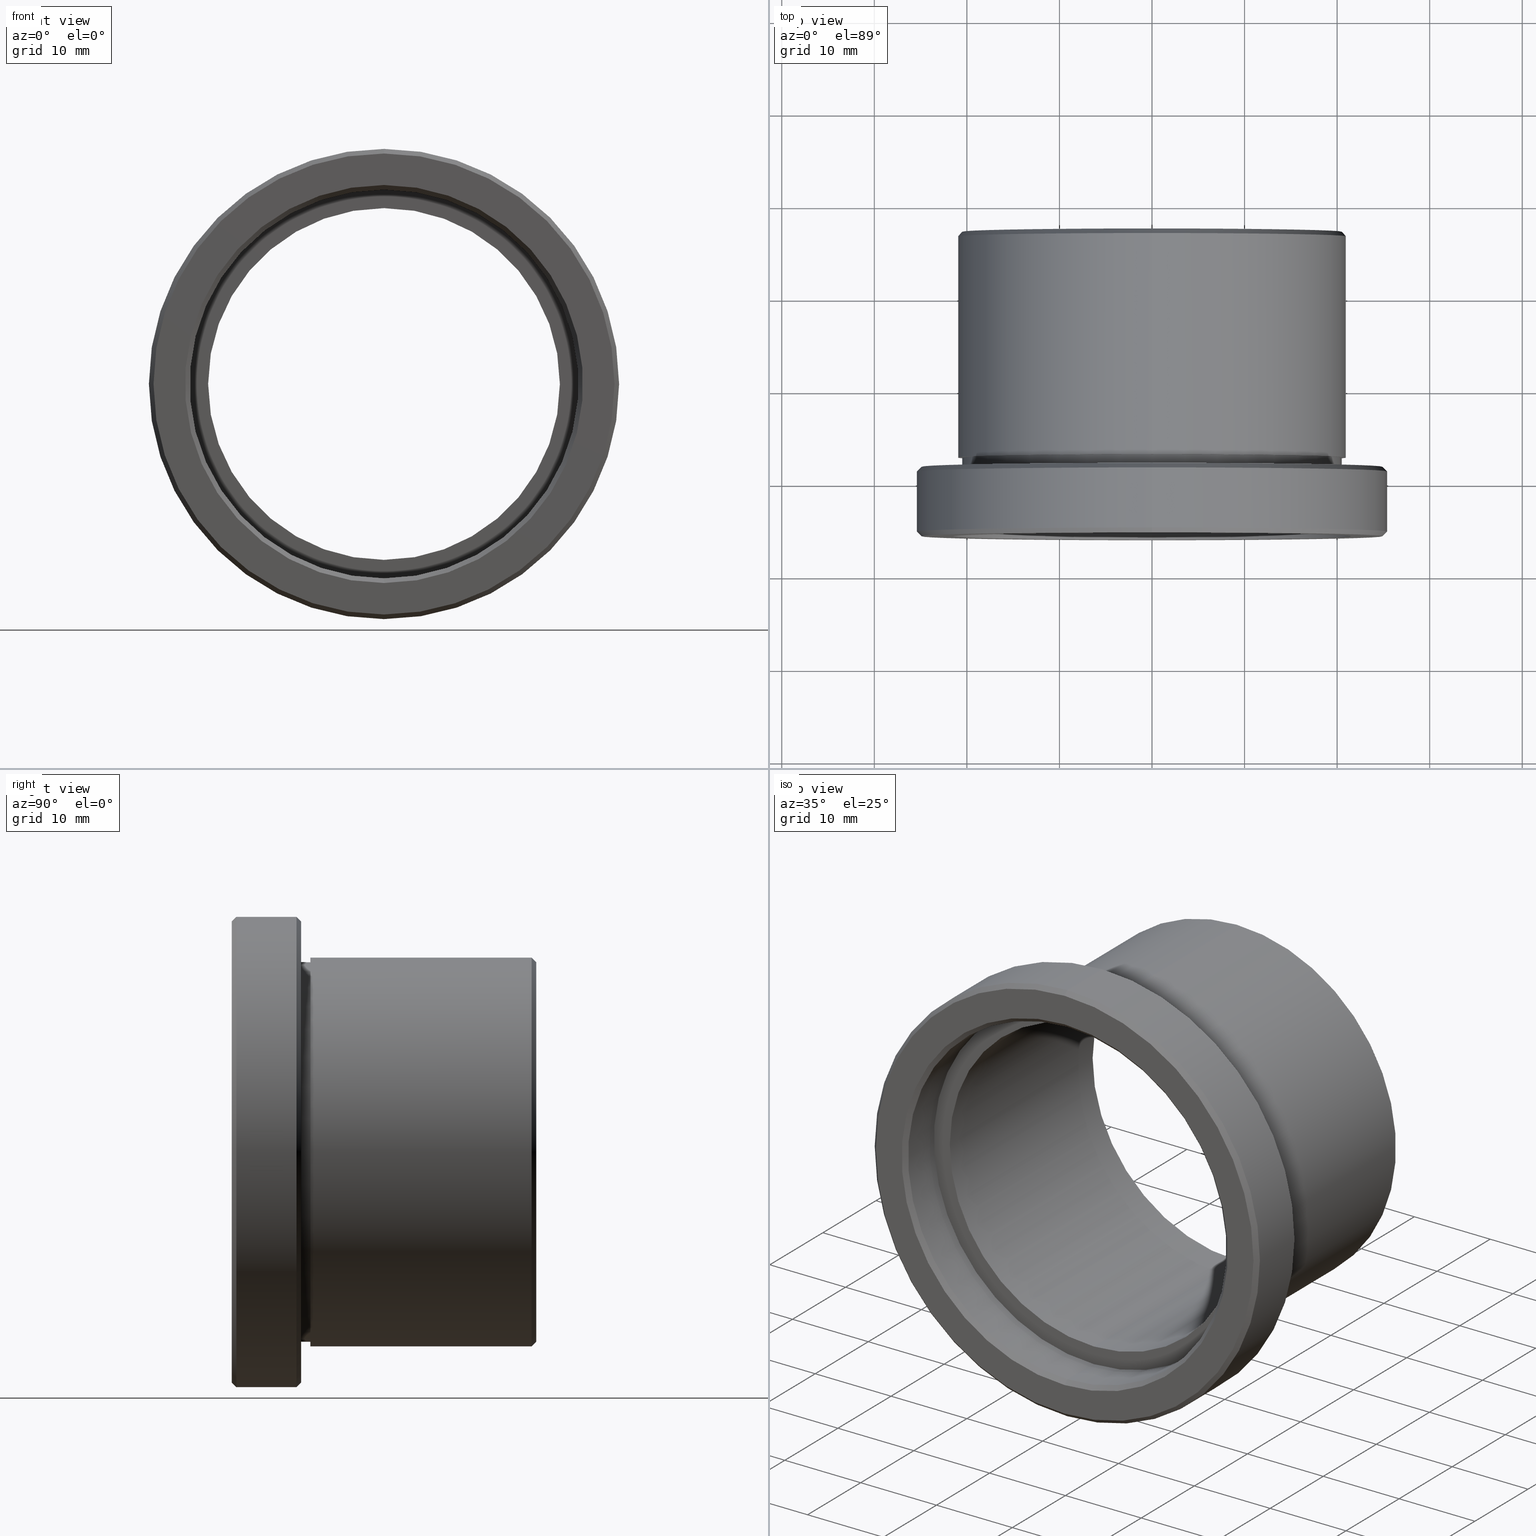
[diagram: canonical four-view strip — front | top / right | iso, engineering-drawing reading convention]
A machine part, canonical four-view strip (front | top / right | iso — engineering-drawing reading convention). The complete STEP part file that produces these views, byte-faithful:
ISO-10303-21;
HEADER;
FILE_DESCRIPTION (( 'STEP AP203' ),
    '1' );
FILE_NAME ('505002.STEP',
    '2019-09-12T02:05:19',
    ( '' ),
    ( '' ),
    'SwSTEP 2.0',
    'SolidWorks 2016',
    '' );
FILE_SCHEMA (( 'CONFIG_CONTROL_DESIGN' ));
ENDSEC;

DATA;
#1 = ORIENTED_EDGE ( 'NONE', *, *, #700, .F. ) ;
#2 = DIRECTION ( 'NONE',  ( 0.0000000000000000000, 0.7071067811865475700, 0.7071067811865474600 ) ) ;
#3 = PLANE ( 'NONE',  #364 ) ;
#4 = VECTOR ( 'NONE', #263, 1000.000000000000000 ) ;
#5 = EDGE_CURVE ( 'NONE', #204, #698, #422, .T. ) ;
#6 = VERTEX_POINT ( 'NONE', #183 ) ;
#7 = PRODUCT_DEFINITION_SHAPE ( 'NONE', 'NONE',  #671 ) ;
#8 = EDGE_LOOP ( 'NONE', ( #537, #845, #739, #580 ) ) ;
#9 = CALENDAR_DATE ( 2019, 12, 9 ) ;
#10 = DIRECTION ( 'NONE',  ( 8.659560562354963700E-017, 0.7071067811865450200, -0.7071067811865500200 ) ) ;
#11 = CALENDAR_DATE ( 2019, 12, 9 ) ;
#12 = ORIENTED_EDGE ( 'NONE', *, *, #655, .F. ) ;
#13 = CARTESIAN_POINT ( 'NONE',  ( 0.0000000000000000000, -5.357145825433104100, 0.0000000000000000000 ) ) ;
#14 = AXIS2_PLACEMENT_3D ( 'NONE', #703, #75, #356 ) ;
#15 = CARTESIAN_POINT ( 'NONE',  ( 3.049370529876910100E-015, -5.857145825433105000, -24.90000000000000200 ) ) ;
#16 = ADVANCED_FACE ( 'NONE', ( #280 ), #129, .T. ) ;
#17 = ORIENTED_EDGE ( 'NONE', *, *, #224, .F. ) ;
#18 = DIRECTION ( 'NONE',  ( 0.0000000000000000000, 0.0000000000000000000, 1.000000000000000000 ) ) ;
#19 = CIRCLE ( 'NONE', #495, 25.40000000000000600 ) ;
#20 = DIRECTION ( 'NONE',  ( 0.0000000000000000000, 0.0000000000000000000, 1.000000000000000000 ) ) ;
#21 = VERTEX_POINT ( 'NONE', #674 ) ;
#22 = PERSON_AND_ORGANIZATION ( #347, #878 ) ;
#23 = APPROVAL ( #736, 'δָ��' ) ;
#24 = CARTESIAN_POINT ( 'NONE',  ( 2.388061258337339700E-015, 27.04285417456689100, -19.50000000000000700 ) ) ;
#25 = AXIS2_PLACEMENT_3D ( 'NONE', #430, #284, #847 ) ;
#26 = APPLICATION_CONTEXT ( 'configuration controlled 3d designs of mechanical parts and assemblies' ) ;
#27 = EDGE_CURVE ( 'NONE', #593, #351, #301, .T. ) ;
#28 = DIRECTION ( 'NONE',  ( -0.0000000000000000000, 1.000000000000000000, -0.0000000000000000000 ) ) ;
#29 = ORIENTED_EDGE ( 'NONE', *, *, #513, .F. ) ;
#30 = CIRCLE ( 'NONE', #598, 21.00000000000000700 ) ;
#31 = PERSON_AND_ORGANIZATION_ROLE ( 'design_owner' ) ;
#32 = PERSON_AND_ORGANIZATION ( #347, #878 ) ;
#33 = AXIS2_PLACEMENT_3D ( 'NONE', #748, #889, #141 ) ;
#34 = ORIENTED_EDGE ( 'NONE', *, *, #689, .T. ) ;
#35 = APPROVAL_PERSON_ORGANIZATION ( #290, #361, #724 ) ;
#36 = APPROVAL_STATUS ( 'not_yet_approved' ) ;
#37 = EDGE_CURVE ( 'NONE', #147, #321, #287, .T. ) ;
#38 = CARTESIAN_POINT ( 'NONE',  ( 0.0000000000000000000, 1.142854174566894300, -25.40000000000000600 ) ) ;
#39 = DIRECTION ( 'NONE',  ( 0.0000000000000000000, 0.0000000000000000000, 1.000000000000000000 ) ) ;
#40 = CARTESIAN_POINT ( 'NONE',  ( 0.0000000000000000000, 2.642854174566895900, 21.00000000000000700 ) ) ;
#41 = FACE_OUTER_BOUND ( 'NONE', #277, .T. ) ;
#42 = VERTEX_POINT ( 'NONE', #673 ) ;
#43 = FACE_OUTER_BOUND ( 'NONE', #127, .T. ) ;
#44 = ORIENTED_EDGE ( 'NONE', *, *, #639, .F. ) ;
#45 = APPROVAL_PERSON_ORGANIZATION ( #866, #715, #377 ) ;
#46 = AXIS2_PLACEMENT_3D ( 'NONE', #861, #317, #738 ) ;
#47 = PERSON_AND_ORGANIZATION ( #347, #878 ) ;
#48 = ORIENTED_EDGE ( 'NONE', *, *, #313, .T. ) ;
#49 = ORIENTED_EDGE ( 'NONE', *, *, #224, .T. ) ;
#50 = CIRCLE ( 'NONE', #828, 20.50000000000000400 ) ;
#51 = ORIENTED_EDGE ( 'NONE', *, *, #777, .F. ) ;
#52 = DESIGN_CONTEXT ( 'detailed design', #26, 'design' ) ;
#53 = ORIENTED_EDGE ( 'NONE', *, *, #879, .T. ) ;
#54 = CARTESIAN_POINT ( 'NONE',  ( 0.0000000000000000000, 26.54285417456689100, 0.0000000000000000000 ) ) ;
#55 = DIRECTION ( 'NONE',  ( -0.0000000000000000000, 1.000000000000000000, -0.0000000000000000000 ) ) ;
#56 = EDGE_CURVE ( 'NONE', #698, #204, #150, .T. ) ;
#57 = DIRECTION ( 'NONE',  ( 0.0000000000000000000, 0.0000000000000000000, 1.000000000000000000 ) ) ;
#58 = DIRECTION ( 'NONE',  ( -0.0000000000000000000, 1.000000000000000000, -0.0000000000000000000 ) ) ;
#59 = ADVANCED_FACE ( 'NONE', ( #729 ), #401, .F. ) ;
#60 = CARTESIAN_POINT ( 'NONE',  ( 0.0000000000000000000, 1.642854174566894800, -24.90000000000000200 ) ) ;
#61 = AXIS2_PLACEMENT_3D ( 'NONE', #279, #780, #843 ) ;
#62 = CIRCLE ( 'NONE', #654, 19.00000000000000700 ) ;
#63 = CONICAL_SURFACE ( 'NONE', #892, 25.40000000000000600, 0.7853981633974518300 ) ;
#64 = EDGE_CURVE ( 'NONE', #440, #600, #196, .T. ) ;
#65 = EDGE_LOOP ( 'NONE', ( #551, #188, #839, #1 ) ) ;
#66 = ORIENTED_EDGE ( 'NONE', *, *, #313, .F. ) ;
#67 = PERSON_AND_ORGANIZATION ( #347, #878 ) ;
#68 = CC_DESIGN_DATE_AND_TIME_ASSIGNMENT ( #605, #859, ( #484 ) ) ;
#69 = AXIS2_PLACEMENT_3D ( 'NONE', #545, #131, #337 ) ;
#70 = DIRECTION ( 'NONE',  ( 0.0000000000000000000, 0.0000000000000000000, 1.000000000000000000 ) ) ;
#71 = CARTESIAN_POINT ( 'NONE',  ( 3.079986699855593900E-015, -5.857145825433105000, -24.90000000000000200 ) ) ;
#72 = EDGE_CURVE ( 'NONE', #698, #754, #260, .T. ) ;
#73 = ORIENTED_EDGE ( 'NONE', *, *, #214, .F. ) ;
#74 = VECTOR ( 'NONE', #618, 1000.000000000000000 ) ;
#75 = DIRECTION ( 'NONE',  ( -0.0000000000000000000, 1.000000000000000000, -0.0000000000000000000 ) ) ;
#76 = FACE_OUTER_BOUND ( 'NONE', #890, .T. ) ;
#77 = DIRECTION ( 'NONE',  ( 0.0000000000000000000, 0.0000000000000000000, 1.000000000000000000 ) ) ;
#78 = ORIENTED_EDGE ( 'NONE', *, *, #749, .F. ) ;
#79 = LOCAL_TIME ( 10, 5, 19.00000000000000000, #584 ) ;
#80 = AXIS2_PLACEMENT_3D ( 'NONE', #397, #742, #522 ) ;
#81 = CARTESIAN_POINT ( 'NONE',  ( 0.0000000000000000000, 1.642854174566894800, 0.0000000000000000000 ) ) ;
#82 = CARTESIAN_POINT ( 'NONE',  ( 2.510525938252074500E-015, 2.642854174566895900, -20.50000000000000400 ) ) ;
#83 = EDGE_CURVE ( 'NONE', #539, #21, #818, .T. ) ;
#84 = CARTESIAN_POINT ( 'NONE',  ( 0.0000000000000000000, -5.857145825433105000, 0.0000000000000000000 ) ) ;
#85 = FACE_OUTER_BOUND ( 'NONE', #656, .T. ) ;
#86 = VECTOR ( 'NONE', #802, 1000.000000000000000 ) ;
#87 = CARTESIAN_POINT ( 'NONE',  ( 3.110602869834278000E-015, -5.357145825433104100, -25.40000000000000600 ) ) ;
#88 = EDGE_LOOP ( 'NONE', ( #477, #363 ) ) ;
#89 = ADVANCED_FACE ( 'NONE', ( #476 ), #110, .T. ) ;
#90 = PERSON_AND_ORGANIZATION ( #347, #878 ) ;
#91 = CARTESIAN_POINT ( 'NONE',  ( 0.0000000000000000000, 27.04285417456689100, 19.50000000000000700 ) ) ;
#92 = CC_DESIGN_APPROVAL ( #851, ( #809 ) ) ;
#93 = CARTESIAN_POINT ( 'NONE',  ( 0.0000000000000000000, 44.59859774529311900, 0.0000000000000000000 ) ) ;
#94 = ADVANCED_FACE ( 'NONE', ( #827, #509 ), #132, .F. ) ;
#95 = AXIS2_PLACEMENT_3D ( 'NONE', #578, #502, #157 ) ;
#96 = CARTESIAN_POINT ( 'NONE',  ( 0.0000000000000000000, 27.04285417456689100, 0.0000000000000000000 ) ) ;
#97 = VERTEX_POINT ( 'NONE', #60 ) ;
#98 = ORIENTED_EDGE ( 'NONE', *, *, #265, .T. ) ;
#99 = LINE ( 'NONE', #106, #74 ) ;
#100 = CIRCLE ( 'NONE', #825, 20.50000000000000400 ) ;
#101 = EDGE_LOOP ( 'NONE', ( #770, #566, #835, #622 ) ) ;
#102 = APPROVAL_STATUS ( 'not_yet_approved' ) ;
#103 = ORIENTED_EDGE ( 'NONE', *, *, #72, .F. ) ;
#104 =( NAMED_UNIT ( * ) PLANE_ANGLE_UNIT ( ) SI_UNIT ( $, .RADIAN. ) );
#105 = EDGE_CURVE ( 'NONE', #42, #865, #323, .T. ) ;
#106 = CARTESIAN_POINT ( 'NONE',  ( 3.110602869834277700E-015, 1.142854174566894300, 25.40000000000000600 ) ) ;
#107 = CARTESIAN_POINT ( 'NONE',  ( 0.0000000000000000000, 2.642854174566895900, 0.0000000000000000000 ) ) ;
#108 = ORIENTED_EDGE ( 'NONE', *, *, #259, .T. ) ;
#109 = DIRECTION ( 'NONE',  ( 0.0000000000000000000, 0.0000000000000000000, 1.000000000000000000 ) ) ;
#110 = CYLINDRICAL_SURFACE ( 'NONE', #752, 20.50000000000000400 ) ;
#111 = ORIENTED_EDGE ( 'NONE', *, *, #146, .T. ) ;
#112 = CARTESIAN_POINT ( 'NONE',  ( 21.00000000000000700, -1.357145825433105900, 0.0000000000000000000 ) ) ;
#113 = AXIS2_PLACEMENT_3D ( 'NONE', #557, #572, #778 ) ;
#114 = CARTESIAN_POINT ( 'NONE',  ( 0.0000000000000000000, -1.357145825433107900, 0.0000000000000000000 ) ) ;
#115 = PERSON_AND_ORGANIZATION ( #347, #878 ) ;
#116 = PERSON_AND_ORGANIZATION_ROLE ( 'design_supplier' ) ;
#117 = DIRECTION ( 'NONE',  ( -0.0000000000000000000, 1.000000000000000000, -0.0000000000000000000 ) ) ;
#118 = CC_DESIGN_APPROVAL ( #23, ( #743 ) ) ;
#119 = EDGE_LOOP ( 'NONE', ( #696, #111, #720, #17 ) ) ;
#120 = CC_DESIGN_DATE_AND_TIME_ASSIGNMENT ( #133, #587, ( #671 ) ) ;
#121 = LINE ( 'NONE', #149, #271 ) ;
#122 = VERTEX_POINT ( 'NONE', #407 ) ;
#123 = EDGE_CURVE ( 'NONE', #21, #205, #744, .T. ) ;
#124 = DATE_AND_TIME ( #11, #79 ) ;
#125 = AXIS2_PLACEMENT_3D ( 'NONE', #283, #774, #640 ) ;
#126 = PLANE ( 'NONE',  #691 ) ;
#127 = EDGE_LOOP ( 'NONE', ( #399, #481 ) ) ;
#128 = EDGE_CURVE ( 'NONE', #204, #261, #857, .T. ) ;
#129 = CONICAL_SURFACE ( 'NONE', #867, 25.40000000000000600, 0.7853981633974518300 ) ;
#130 = ORIENTED_EDGE ( 'NONE', *, *, #785, .F. ) ;
#131 = DIRECTION ( 'NONE',  ( -0.0000000000000000000, 1.000000000000000000, -0.0000000000000000000 ) ) ;
#132 = PLANE ( 'NONE',  #781 ) ;
#133 = DATE_AND_TIME ( #457, #581 ) ;
#134 = AXIS2_PLACEMENT_3D ( 'NONE', #372, #508, #165 ) ;
#135 = ORIENTED_EDGE ( 'NONE', *, *, #647, .T. ) ;
#136 = CARTESIAN_POINT ( 'NONE',  ( 0.0000000000000000000, 27.04285417456689100, 19.50000000000000700 ) ) ;
#137 = FACE_BOUND ( 'NONE', #349, .T. ) ;
#138 = CIRCLE ( 'NONE', #33, 20.50000000000000400 ) ;
#139 = CARTESIAN_POINT ( 'NONE',  ( 3.079986699855593900E-015, 1.642854174566894800, 24.90000000000000200 ) ) ;
#140 = COORDINATED_UNIVERSAL_TIME_OFFSET ( 8, 0, .AHEAD. ) ;
#141 = DIRECTION ( 'NONE',  ( 0.0000000000000000000, 0.0000000000000000000, 1.000000000000000000 ) ) ;
#142 = DIRECTION ( 'NONE',  ( -0.0000000000000000000, 1.000000000000000000, -0.0000000000000000000 ) ) ;
#143 = DIRECTION ( 'NONE',  ( 0.0000000000000000000, 0.0000000000000000000, 1.000000000000000000 ) ) ;
#144 = CARTESIAN_POINT ( 'NONE',  ( 2.584004746200916200E-015, -1.357145825433107900, -21.10000000000000900 ) ) ;
#145 = DIRECTION ( 'NONE',  ( -0.0000000000000000000, 1.000000000000000000, -0.0000000000000000000 ) ) ;
#146 = EDGE_CURVE ( 'NONE', #668, #122, #722, .T. ) ;
#147 = VERTEX_POINT ( 'NONE', #546 ) ;
#148 = CIRCLE ( 'NONE', #791, 21.00000000000000700 ) ;
#149 = CARTESIAN_POINT ( 'NONE',  ( 0.0000000000000000000, -5.857145825433105000, 24.90000000000000200 ) ) ;
#150 = CIRCLE ( 'NONE', #561, 21.10000000000000900 ) ;
#151 = DIRECTION ( 'NONE',  ( 0.0000000000000000000, 0.0000000000000000000, 1.000000000000000000 ) ) ;
#152 = EDGE_LOOP ( 'NONE', ( #648, #456 ) ) ;
#153 = PRODUCT ( '505002', '505002', '', ( #728 ) ) ;
#154 = DIRECTION ( 'NONE',  ( 0.0000000000000000000, 0.0000000000000000000, 1.000000000000000000 ) ) ;
#155 = CARTESIAN_POINT ( 'NONE',  ( 21.10000000000000900, -0.3571458254331058000, 0.0000000000000000000 ) ) ;
#156 = AXIS2_PLACEMENT_3D ( 'NONE', #471, #663, #57 ) ;
#157 = DIRECTION ( 'NONE',  ( 0.0000000000000000000, 0.0000000000000000000, 1.000000000000000000 ) ) ;
#158 = CARTESIAN_POINT ( 'NONE',  ( 21.00000000000000700, 2.642854174566895000, 0.0000000000000000000 ) ) ;
#159 = DIRECTION ( 'NONE',  ( -0.0000000000000000000, 1.000000000000000000, -0.0000000000000000000 ) ) ;
#160 = VERTEX_POINT ( 'NONE', #821 ) ;
#161 = FACE_BOUND ( 'NONE', #808, .T. ) ;
#162 = PRODUCT_DEFINITION_FORMATION_WITH_SPECIFIED_SOURCE ( '�κ�', '', #628, .NOT_KNOWN. ) ;
#163 = EDGE_LOOP ( 'NONE', ( #575, #614 ) ) ;
#164 = APPROVAL_DATE_TIME ( #510, #411 ) ;
#165 = DIRECTION ( 'NONE',  ( 0.0000000000000000000, 0.0000000000000000000, -1.000000000000000000 ) ) ;
#166 = CARTESIAN_POINT ( 'NONE',  ( 0.0000000000000000000, 27.04285417456689100, 0.0000000000000000000 ) ) ;
#167 = EDGE_CURVE ( 'NONE', #376, #660, #138, .T. ) ;
#168 = APPLICATION_PROTOCOL_DEFINITION ( 'international standard', 'config_control_design', 1994, #453 ) ;
#169 = APPLICATION_PROTOCOL_DEFINITION ( 'international standard', 'config_control_design', 1994, #792 ) ;
#170 = AXIS2_PLACEMENT_3D ( 'NONE', #886, #616, #195 ) ;
#171 = CIRCLE ( 'NONE', #762, 20.50000000000000400 ) ;
#172 = CARTESIAN_POINT ( 'NONE',  ( 2.388061258337339700E-015, 27.04285417456689100, -19.50000000000000700 ) ) ;
#173 = LINE ( 'NONE', #560, #332 ) ;
#174 = EDGE_LOOP ( 'NONE', ( #874, #764, #675, #44 ) ) ;
#175 = CARTESIAN_POINT ( 'NONE',  ( 0.0000000000000000000, 0.0000000000000000000, 0.0000000000000000000 ) ) ;
#176 = LOCAL_TIME ( 10, 5, 19.00000000000000000, #692 ) ;
#177 = DIRECTION ( 'NONE',  ( -0.0000000000000000000, 1.000000000000000000, -0.0000000000000000000 ) ) ;
#178 = EDGE_LOOP ( 'NONE', ( #632, #365, #638, #402 ) ) ;
#179 = CARTESIAN_POINT ( 'NONE',  ( 2.571758278209442100E-015, 26.54285417456689100, -21.00000000000000400 ) ) ;
#180 = DIRECTION ( 'NONE',  ( 0.0000000000000000000, 0.0000000000000000000, 1.000000000000000000 ) ) ;
#181 = CC_DESIGN_APPROVAL ( #361, ( #484 ) ) ;
#182 = AXIS2_PLACEMENT_3D ( 'NONE', #589, #244, #594 ) ;
#183 = CARTESIAN_POINT ( 'NONE',  ( 0.0000000000000000000, 1.142854174566894300, 25.40000000000000600 ) ) ;
#184 = ORIENTED_EDGE ( 'NONE', *, *, #599, .F. ) ;
#185 = EDGE_LOOP ( 'NONE', ( #78, #253, #838, #390 ) ) ;
#186 = CYLINDRICAL_SURFACE ( 'NONE', #543, 19.00000000000000700 ) ;
#187 = CYLINDRICAL_SURFACE ( 'NONE', #643, 25.40000000000000600 ) ;
#188 = ORIENTED_EDGE ( 'NONE', *, *, #267, .T. ) ;
#189 = CALENDAR_DATE ( 2019, 12, 9 ) ;
#190 = ADVANCED_FACE ( 'NONE', ( #494 ), #634, .T. ) ;
#191 = DIRECTION ( 'NONE',  ( -0.0000000000000000000, 1.000000000000000000, 0.0000000000000000000 ) ) ;
#192 = VERTEX_POINT ( 'NONE', #71 ) ;
#193 = FACE_OUTER_BOUND ( 'NONE', #385, .T. ) ;
#194 = DIRECTION ( 'NONE',  ( -0.0000000000000000000, 1.000000000000000000, -0.0000000000000000000 ) ) ;
#195 = DIRECTION ( 'NONE',  ( 0.0000000000000000000, 0.0000000000000000000, 1.000000000000000000 ) ) ;
#196 = CIRCLE ( 'NONE', #733, 21.00000000000000700 ) ;
#197 = ADVANCED_FACE ( 'NONE', ( #352 ), #773, .T. ) ;
#198 = ORIENTED_EDGE ( 'NONE', *, *, #831, .T. ) ;
#199 = LOCAL_TIME ( 10, 5, 19.00000000000000000, #140 ) ;
#200 = DIRECTION ( 'NONE',  ( -0.0000000000000000000, 1.000000000000000000, -0.0000000000000000000 ) ) ;
#201 = DIRECTION ( 'NONE',  ( -0.0000000000000000000, 1.000000000000000000, -0.0000000000000000000 ) ) ;
#202 = CARTESIAN_POINT ( 'NONE',  ( 2.632990618166810000E-015, -5.857145825433105000, 21.50000000000000700 ) ) ;
#203 = AXIS2_PLACEMENT_3D ( 'NONE', #804, #805, #315 ) ;
#204 = VERTEX_POINT ( 'NONE', #144 ) ;
#205 = VERTEX_POINT ( 'NONE', #212 ) ;
#206 = CONICAL_SURFACE ( 'NONE', #480, 19.50000000000000700, 0.7853981633974482800 ) ;
#207 = ORIENTED_EDGE ( 'NONE', *, *, #700, .T. ) ;
#208 = PERSON_AND_ORGANIZATION ( #347, #878 ) ;
#209 = CC_DESIGN_SECURITY_CLASSIFICATION ( #743, ( #162 ) ) ;
#210 = DIRECTION ( 'NONE',  ( 0.0000000000000000000, -1.000000000000000000, 0.0000000000000000000 ) ) ;
#211 = DIRECTION ( 'NONE',  ( 8.659560562354931600E-017, -0.7071067811865475700, 0.7071067811865474600 ) ) ;
#212 = CARTESIAN_POINT ( 'NONE',  ( 2.571758278209442400E-015, -1.357145825433107900, -21.00000000000000700 ) ) ;
#213 = ADVANCED_BREP_SHAPE_REPRESENTATION ( '505002', ( #305, #236 ), #320 ) ;
#214 = EDGE_CURVE ( 'NONE', #815, #6, #798, .T. ) ;
#215 = PRODUCT_DEFINITION_SHAPE ( 'NONE', 'NONE',  #484 ) ;
#216 = CARTESIAN_POINT ( 'NONE',  ( 2.510525938252074500E-015, 44.59859774529311900, -20.50000000000000400 ) ) ;
#217 = VERTEX_POINT ( 'NONE', #276 ) ;
#218 = CARTESIAN_POINT ( 'NONE',  ( 0.0000000000000000000, 26.54285417456689100, 0.0000000000000000000 ) ) ;
#219 = DIRECTION ( 'NONE',  ( 0.0000000000000000000, 0.0000000000000000000, 1.000000000000000000 ) ) ;
#220 = CIRCLE ( 'NONE', #782, 21.10000000000000900 ) ;
#221 = FACE_OUTER_BOUND ( 'NONE', #751, .T. ) ;
#222 = DIRECTION ( 'NONE',  ( -0.0000000000000000000, 1.000000000000000000, -0.0000000000000000000 ) ) ;
#223 = ORIENTED_EDGE ( 'NONE', *, *, #871, .T. ) ;
#224 = EDGE_CURVE ( 'NONE', #351, #593, #100, .T. ) ;
#225 = CARTESIAN_POINT ( 'NONE',  ( 2.326828918379971800E-015, 44.59859774529311900, -19.00000000000000700 ) ) ;
#226 = CARTESIAN_POINT ( 'NONE',  ( 0.0000000000000000000, -5.857145825433105000, 0.0000000000000000000 ) ) ;
#227 = DIRECTION ( 'NONE',  ( -0.0000000000000000000, 1.000000000000000000, -0.0000000000000000000 ) ) ;
#228 = DIRECTION ( 'NONE',  ( 0.0000000000000000000, 0.0000000000000000000, 1.000000000000000000 ) ) ;
#229 = CC_DESIGN_APPROVAL ( #459, ( #162 ) ) ;
#230 = VECTOR ( 'NONE', #653, 1000.000000000000000 ) ;
#231 = DIRECTION ( 'NONE',  ( 0.0000000000000000000, 0.0000000000000000000, 1.000000000000000000 ) ) ;
#232 = VECTOR ( 'NONE', #145, 1000.000000000000000 ) ;
#233 = DIRECTION ( 'NONE',  ( -0.0000000000000000000, 1.000000000000000000, -0.0000000000000000000 ) ) ;
#234 = ORIENTED_EDGE ( 'NONE', *, *, #167, .T. ) ;
#235 = ADVANCED_FACE ( 'NONE', ( #485, #76 ), #637, .F. ) ;
#236 = AXIS2_PLACEMENT_3D ( 'NONE', #658, #39, #298 ) ;
#237 = ORIENTED_EDGE ( 'NONE', *, *, #860, .T. ) ;
#238 = APPLICATION_PROTOCOL_DEFINITION ( 'international standard', 'config_control_design', 1994, #26 ) ;
#239 = ORIENTED_EDGE ( 'NONE', *, *, #655, .T. ) ;
#240 = CYLINDRICAL_SURFACE ( 'NONE', #14, 19.00000000000000700 ) ;
#241 = APPLICATION_PROTOCOL_DEFINITION ( 'international standard', 'config_control_design', 1994, #661 ) ;
#242 = VECTOR ( 'NONE', #335, 1000.000000000000000 ) ;
#243 = ORIENTED_EDGE ( 'NONE', *, *, #5, .T. ) ;
#244 = DIRECTION ( 'NONE',  ( -0.0000000000000000000, 1.000000000000000000, -0.0000000000000000000 ) ) ;
#245 = APPROVAL_ROLE ( '' ) ;
#246 = DIRECTION ( 'NONE',  ( 0.0000000000000000000, 0.0000000000000000000, 1.000000000000000000 ) ) ;
#247 = SECURITY_CLASSIFICATION_LEVEL ( 'unclassified' ) ;
#248 = CYLINDRICAL_SURFACE ( 'NONE', #413, 25.40000000000000600 ) ;
#249 = CIRCLE ( 'NONE', #338, 25.40000000000000600 ) ;
#250 = AXIS2_PLACEMENT_3D ( 'NONE', #54, #194, #384 ) ;
#251 = DIRECTION ( 'NONE',  ( 0.0000000000000000000, 0.0000000000000000000, -1.000000000000000000 ) ) ;
#252 = ORIENTED_EDGE ( 'NONE', *, *, #448, .F. ) ;
#253 = ORIENTED_EDGE ( 'NONE', *, *, #694, .F. ) ;
#254 = LOCAL_TIME ( 10, 5, 19.00000000000000000, #438 ) ;
#255 = DIRECTION ( 'NONE',  ( 0.0000000000000000000, -1.000000000000000000, 0.0000000000000000000 ) ) ;
#256 = PRODUCT_RELATED_PRODUCT_CATEGORY ( 'detail', '', ( #628 ) ) ;
#257 = ORIENTED_EDGE ( 'NONE', *, *, #681, .F. ) ;
#258 = CIRCLE ( 'NONE', #46, 21.50000000000000700 ) ;
#259 = EDGE_CURVE ( 'NONE', #205, #626, #553, .T. ) ;
#260 = LINE ( 'NONE', #540, #312 ) ;
#261 = VERTEX_POINT ( 'NONE', #704 ) ;
#262 = SHAPE_DEFINITION_REPRESENTATION ( #215, #213 ) ;
#263 = DIRECTION ( 'NONE',  ( 0.0000000000000000000, -0.7071067811865450200, -0.7071067811865500200 ) ) ;
#264 = DIRECTION ( 'NONE',  ( 0.0000000000000000000, 0.0000000000000000000, 1.000000000000000000 ) ) ;
#265 = EDGE_CURVE ( 'NONE', #217, #755, #517, .T. ) ;
#266 = DIRECTION ( 'NONE',  ( 0.0000000000000000000, 0.0000000000000000000, 1.000000000000000000 ) ) ;
#267 = EDGE_CURVE ( 'NONE', #440, #865, #173, .T. ) ;
#268 = ADVANCED_FACE ( 'NONE', ( #221 ), #187, .T. ) ;
#269 = FACE_OUTER_BOUND ( 'NONE', #272, .T. ) ;
#270 = DIRECTION ( 'NONE',  ( -0.0000000000000000000, 1.000000000000000000, -0.0000000000000000000 ) ) ;
#271 = VECTOR ( 'NONE', #417, 1000.000000000000000 ) ;
#272 = EDGE_LOOP ( 'NONE', ( #776, #677, #108, #51 ) ) ;
#273 = COORDINATED_UNIVERSAL_TIME_OFFSET ( 8, 0, .AHEAD. ) ;
#274 = CC_DESIGN_PERSON_AND_ORGANIZATION_ASSIGNMENT ( #115, #374, ( #809 ) ) ;
#275 = AXIS2_PLACEMENT_3D ( 'NONE', #500, #775, #490 ) ;
#276 = CARTESIAN_POINT ( 'NONE',  ( 0.0000000000000000000, 26.54285417456689100, 19.00000000000000700 ) ) ;
#277 = EDGE_LOOP ( 'NONE', ( #66, #497, #846, #592 ) ) ;
#278 = CIRCLE ( 'NONE', #203, 24.90000000000000200 ) ;
#279 = CARTESIAN_POINT ( 'NONE',  ( 0.0000000000000000000, -1.357145825433107900, 0.0000000000000000000 ) ) ;
#280 = FACE_OUTER_BOUND ( 'NONE', #596, .T. ) ;
#281 = EDGE_LOOP ( 'NONE', ( #506, #48, #745, #610 ) ) ;
#282 = DIRECTION ( 'NONE',  ( 0.0000000000000000000, 0.0000000000000000000, -1.000000000000000000 ) ) ;
#283 = CARTESIAN_POINT ( 'NONE',  ( 0.0000000000000000000, -1.357145825433107900, 0.0000000000000000000 ) ) ;
#284 = DIRECTION ( 'NONE',  ( 0.0000000000000000000, -1.000000000000000000, 0.0000000000000000000 ) ) ;
#285 = CARTESIAN_POINT ( 'NONE',  ( 0.0000000000000000000, 1.142854174566894300, 0.0000000000000000000 ) ) ;
#286 = FACE_OUTER_BOUND ( 'NONE', #408, .T. ) ;
#287 = CIRCLE ( 'NONE', #466, 19.00000000000000700 ) ;
#288 = DIRECTION ( 'NONE',  ( 0.0000000000000000000, 0.0000000000000000000, 1.000000000000000000 ) ) ;
#289 = VERTEX_POINT ( 'NONE', #202 ) ;
#290 = PERSON_AND_ORGANIZATION ( #347, #878 ) ;
#291 = DIRECTION ( 'NONE',  ( 0.0000000000000000000, 0.0000000000000000000, 1.000000000000000000 ) ) ;
#292 = AXIS2_PLACEMENT_3D ( 'NONE', #452, #177, #180 ) ;
#293 = CARTESIAN_POINT ( 'NONE',  ( 0.0000000000000000000, 1.142854174566894300, 0.0000000000000000000 ) ) ;
#294 = CARTESIAN_POINT ( 'NONE',  ( 0.0000000000000000000, 44.59859774529311900, 21.00000000000000400 ) ) ;
#295 = CARTESIAN_POINT ( 'NONE',  ( 0.0000000000000000000, 26.54285417456689100, 0.0000000000000000000 ) ) ;
#296 = ADVANCED_FACE ( 'NONE', ( #893 ), #529, .F. ) ;
#297 = ORIENTED_EDGE ( 'NONE', *, *, #492, .T. ) ;
#298 = DIRECTION ( 'NONE',  ( 1.000000000000000000, 0.0000000000000000000, 0.0000000000000000000 ) ) ;
#299 = FACE_OUTER_BOUND ( 'NONE', #659, .T. ) ;
#300 = DIRECTION ( 'NONE',  ( -0.0000000000000000000, 1.000000000000000000, -0.0000000000000000000 ) ) ;
#301 = CIRCLE ( 'NONE', #80, 20.50000000000000400 ) ;
#302 = LOCAL_TIME ( 10, 5, 19.00000000000000000, #849 ) ;
#303 = PERSON_AND_ORGANIZATION_ROLE ( 'design_owner' ) ;
#304 = EDGE_CURVE ( 'NONE', #289, #636, #688, .T. ) ;
#305 = MANIFOLD_SOLID_BREP ( '��ת2', #380 ) ;
#306 = DIRECTION ( 'NONE',  ( -0.0000000000000000000, 1.000000000000000000, -0.0000000000000000000 ) ) ;
#307 = MECHANICAL_CONTEXT ( 'NONE', #453, 'mechanical' ) ;
#308 = EDGE_CURVE ( 'NONE', #626, #205, #883, .T. ) ;
#309 = ORIENTED_EDGE ( 'NONE', *, *, #448, .T. ) ;
#310 = CIRCLE ( 'NONE', #521, 24.90000000000000200 ) ;
#311 = PERSON_AND_ORGANIZATION_ROLE ( 'creator' ) ;
#312 = VECTOR ( 'NONE', #760, 1000.000000000000000 ) ;
#313 = EDGE_CURVE ( 'NONE', #539, #289, #342, .T. ) ;
#314 = ORIENTED_EDGE ( 'NONE', *, *, #591, .F. ) ;
#315 = DIRECTION ( 'NONE',  ( 0.0000000000000000000, 0.0000000000000000000, 1.000000000000000000 ) ) ;
#316 = COORDINATED_UNIVERSAL_TIME_OFFSET ( 8, 0, .AHEAD. ) ;
#317 = DIRECTION ( 'NONE',  ( -0.0000000000000000000, 1.000000000000000000, -0.0000000000000000000 ) ) ;
#318 = DIRECTION ( 'NONE',  ( -0.0000000000000000000, 1.000000000000000000, -0.0000000000000000000 ) ) ;
#319 = CC_DESIGN_PERSON_AND_ORGANIZATION_ASSIGNMENT ( #855, #116, ( #162 ) ) ;
#320 =( GEOMETRIC_REPRESENTATION_CONTEXT ( 3 ) GLOBAL_UNCERTAINTY_ASSIGNED_CONTEXT ( ( #373 ) ) GLOBAL_UNIT_ASSIGNED_CONTEXT ( ( #669, #104, #520 ) ) REPRESENTATION_CONTEXT ( 'NONE', 'WORKASPACE' ) );
#321 = VERTEX_POINT ( 'NONE', #496 ) ;
#322 = LINE ( 'NONE', #38, #4 ) ;
#323 = CIRCLE ( 'NONE', #405, 21.00000000000000400 ) ;
#324 = LOCAL_TIME ( 10, 5, 19.00000000000000000, #678 ) ;
#325 = APPROVAL_PERSON_ORGANIZATION ( #47, #23, #389 ) ;
#326 = DIRECTION ( 'NONE',  ( 0.0000000000000000000, 0.0000000000000000000, 1.000000000000000000 ) ) ;
#327 = ADVANCED_FACE ( 'NONE', ( #645, #633 ), #344, .F. ) ;
#328 = CARTESIAN_POINT ( 'NONE',  ( 0.0000000000000000000, 44.59859774529311900, 20.50000000000000400 ) ) ;
#329 = CARTESIAN_POINT ( 'NONE',  ( 2.571758278209442400E-015, 44.59859774529311900, -21.00000000000000700 ) ) ;
#330 = VERTEX_POINT ( 'NONE', #570 ) ;
#331 = FACE_BOUND ( 'NONE', #88, .T. ) ;
#332 = VECTOR ( 'NONE', #489, 1000.000000000000000 ) ;
#333 = ORIENTED_EDGE ( 'NONE', *, *, #591, .T. ) ;
#334 = CARTESIAN_POINT ( 'NONE',  ( 0.0000000000000000000, 27.04285417456689100, -20.50000000000000400 ) ) ;
#335 = DIRECTION ( 'NONE',  ( -0.0000000000000000000, 1.000000000000000000, -0.0000000000000000000 ) ) ;
#336 = DATE_AND_TIME ( #541, #302 ) ;
#337 = DIRECTION ( 'NONE',  ( 0.0000000000000000000, 0.0000000000000000000, 1.000000000000000000 ) ) ;
#338 = AXIS2_PLACEMENT_3D ( 'NONE', #841, #779, #228 ) ;
#339 = ORIENTED_EDGE ( 'NONE', *, *, #259, .F. ) ;
#340 = EDGE_LOOP ( 'NONE', ( #381, #257, #98, #223 ) ) ;
#341 = CYLINDRICAL_SURFACE ( 'NONE', #735, 21.10000000000000900 ) ;
#342 = LINE ( 'NONE', #769, #741 ) ;
#343 = DIRECTION ( 'NONE',  ( 0.0000000000000000000, 0.0000000000000000000, -1.000000000000000000 ) ) ;
#344 = PLANE ( 'NONE',  #113 ) ;
#345 = CARTESIAN_POINT ( 'NONE',  ( 0.0000000000000000000, 2.642854174566895900, 0.0000000000000000000 ) ) ;
#346 = EDGE_CURVE ( 'NONE', #21, #636, #507, .T. ) ;
#347 = PERSON ( 'δָ��', 'δָ��', 'δָ��', ('δָ��'), ('δָ��'), ('δָ��') ) ;
#348 = DIRECTION ( 'NONE',  ( 0.0000000000000000000, -0.0000000000000000000, -1.000000000000000000 ) ) ;
#349 = EDGE_LOOP ( 'NONE', ( #730, #49 ) ) ;
#350 = FACE_OUTER_BOUND ( 'NONE', #829, .T. ) ;
#351 = VERTEX_POINT ( 'NONE', #82 ) ;
#352 = FACE_OUTER_BOUND ( 'NONE', #393, .T. ) ;
#353 = EDGE_CURVE ( 'NONE', #160, #815, #121, .T. ) ;
#354 = ORIENTED_EDGE ( 'NONE', *, *, #599, .T. ) ;
#355 = DATE_AND_TIME ( #189, #176 ) ;
#356 = DIRECTION ( 'NONE',  ( 0.0000000000000000000, 0.0000000000000000000, 1.000000000000000000 ) ) ;
#357 = CARTESIAN_POINT ( 'NONE',  ( 3.110602869834277700E-015, 44.59859774529311900, -25.40000000000000600 ) ) ;
#358 = EDGE_CURVE ( 'NONE', #668, #351, #552, .T. ) ;
#359 = DIRECTION ( 'NONE',  ( -0.0000000000000000000, 1.000000000000000000, -0.0000000000000000000 ) ) ;
#360 = DIRECTION ( 'NONE',  ( -0.0000000000000000000, 1.000000000000000000, -0.0000000000000000000 ) ) ;
#361 = APPROVAL ( #803, 'δָ��' ) ;
#362 = DIRECTION ( 'NONE',  ( -0.0000000000000000000, 1.000000000000000000, -0.0000000000000000000 ) ) ;
#363 = ORIENTED_EDGE ( 'NONE', *, *, #37, .T. ) ;
#364 = AXIS2_PLACEMENT_3D ( 'NONE', #158, #641, #428 ) ;
#365 = ORIENTED_EDGE ( 'NONE', *, *, #83, .F. ) ;
#366 = FACE_OUTER_BOUND ( 'NONE', #65, .T. ) ;
#367 = APPROVAL_DATE_TIME ( #486, #459 ) ;
#368 = ADVANCED_FACE ( 'NONE', ( #657 ), #240, .F. ) ;
#369 = ORIENTED_EDGE ( 'NONE', *, *, #267, .F. ) ;
#370 = PERSON_AND_ORGANIZATION ( #347, #878 ) ;
#371 = DIRECTION ( 'NONE',  ( -0.0000000000000000000, 1.000000000000000000, -0.0000000000000000000 ) ) ;
#372 = CARTESIAN_POINT ( 'NONE',  ( 0.0000000000000000000, -5.357145825433104100, 0.0000000000000000000 ) ) ;
#373 = UNCERTAINTY_MEASURE_WITH_UNIT (LENGTH_MEASURE( 1.000000000000000100E-005 ), #669, 'distance_accuracy_value', 'NONE');
#374 = PERSON_AND_ORGANIZATION_ROLE ( 'design_supplier' ) ;
#375 = EDGE_CURVE ( 'NONE', #815, #491, #19, .T. ) ;
#376 = VERTEX_POINT ( 'NONE', #559 ) ;
#377 = APPROVAL_ROLE ( '' ) ;
#378 = CIRCLE ( 'NONE', #437, 21.10000000000000900 ) ;
#379 = DIRECTION ( 'NONE',  ( -0.0000000000000000000, 1.000000000000000000, -0.0000000000000000000 ) ) ;
#380 = CLOSED_SHELL ( 'NONE', ( #89, #439, #268, #190, #536, #793, #296, #470, #620, #819, #467, #719, #544, #197, #235, #854, #368, #758, #532, #583, #59, #823, #94, #714, #783, #16, #327, #651 ) ) ;
#381 = ORIENTED_EDGE ( 'NONE', *, *, #533, .F. ) ;
#382 = DIRECTION ( 'NONE',  ( 0.0000000000000000000, 0.0000000000000000000, 1.000000000000000000 ) ) ;
#383 = APPROVAL_DATE_TIME ( #830, #361 ) ;
#384 = DIRECTION ( 'NONE',  ( 0.0000000000000000000, 0.0000000000000000000, 1.000000000000000000 ) ) ;
#385 = EDGE_LOOP ( 'NONE', ( #617, #243 ) ) ;
#386 = CARTESIAN_POINT ( 'NONE',  ( 0.0000000000000000000, 44.59859774529311900, 0.0000000000000000000 ) ) ;
#387 = AXIS2_PLACEMENT_3D ( 'NONE', #293, #716, #231 ) ;
#388 = VERTEX_POINT ( 'NONE', #429 ) ;
#390 = ORIENTED_EDGE ( 'NONE', *, *, #681, .T. ) ;
#389 = APPROVAL_ROLE ( '' ) ;
#391 = CIRCLE ( 'NONE', #524, 19.00000000000000700 ) ;
#392 = ORIENTED_EDGE ( 'NONE', *, *, #492, .F. ) ;
#393 = EDGE_LOOP ( 'NONE', ( #853, #12, #297, #354 ) ) ;
#394 = DIRECTION ( 'NONE',  ( 0.0000000000000000000, 0.0000000000000000000, 1.000000000000000000 ) ) ;
#395 = APPROVAL_PERSON_ORGANIZATION ( #22, #851, #723 ) ;
#396 = DIRECTION ( 'NONE',  ( -0.0000000000000000000, 1.000000000000000000, -0.0000000000000000000 ) ) ;
#397 = CARTESIAN_POINT ( 'NONE',  ( 0.0000000000000000000, 2.642854174566895900, 0.0000000000000000000 ) ) ;
#398 = EDGE_CURVE ( 'NONE', #261, #754, #220, .T. ) ;
#399 = ORIENTED_EDGE ( 'NONE', *, *, #420, .F. ) ;
#400 = VECTOR ( 'NONE', #761, 1000.000000000000000 ) ;
#401 = CYLINDRICAL_SURFACE ( 'NONE', #597, 21.00000000000000700 ) ;
#402 = ORIENTED_EDGE ( 'NONE', *, *, #308, .T. ) ;
#403 = DIRECTION ( 'NONE',  ( 0.0000000000000000000, 0.0000000000000000000, 1.000000000000000000 ) ) ;
#404 = DIRECTION ( 'NONE',  ( -0.0000000000000000000, 1.000000000000000000, -0.0000000000000000000 ) ) ;
#405 = AXIS2_PLACEMENT_3D ( 'NONE', #680, #687, #266 ) ;
#406 = DIRECTION ( 'NONE',  ( 0.0000000000000000000, 0.0000000000000000000, 1.000000000000000000 ) ) ;
#407 = CARTESIAN_POINT ( 'NONE',  ( 0.0000000000000000000, 1.642854174566894800, 20.50000000000000400 ) ) ;
#408 = EDGE_LOOP ( 'NONE', ( #740, #848, #462, #447 ) ) ;
#409 = CIRCLE ( 'NONE', #69, 24.90000000000000200 ) ;
#410 = LINE ( 'NONE', #294, #232 ) ;
#411 = APPROVAL ( #102, 'δָ��' ) ;
#412 = ORIENTED_EDGE ( 'NONE', *, *, #879, .F. ) ;
#413 = AXIS2_PLACEMENT_3D ( 'NONE', #705, #571, #713 ) ;
#414 = DATE_AND_TIME ( #515, #443 ) ;
#415 = CARTESIAN_POINT ( 'NONE',  ( 0.0000000000000000000, -5.357145825433104100, 0.0000000000000000000 ) ) ;
#416 = CARTESIAN_POINT ( 'NONE',  ( 0.0000000000000000000, 44.59859774529311900, 25.40000000000000600 ) ) ;
#417 = DIRECTION ( 'NONE',  ( 0.0000000000000000000, 0.7071067811865450200, 0.7071067811865500200 ) ) ;
#418 = VERTEX_POINT ( 'NONE', #139 ) ;
#419 = DIRECTION ( 'NONE',  ( -0.0000000000000000000, 1.000000000000000000, -0.0000000000000000000 ) ) ;
#420 = EDGE_CURVE ( 'NONE', #600, #440, #30, .T. ) ;
#421 = LINE ( 'NONE', #650, #455 ) ;
#422 = CIRCLE ( 'NONE', #542, 21.10000000000000900 ) ;
#423 = CARTESIAN_POINT ( 'NONE',  ( 2.571758278209442400E-015, 2.642854174566895900, -21.00000000000000700 ) ) ;
#424 = ORIENTED_EDGE ( 'NONE', *, *, #37, .F. ) ;
#425 = CARTESIAN_POINT ( 'NONE',  ( 0.0000000000000000000, 44.59859774529311900, 0.0000000000000000000 ) ) ;
#426 = CARTESIAN_POINT ( 'NONE',  ( 0.0000000000000000000, 44.59859774529311900, 21.00000000000000700 ) ) ;
#427 = CARTESIAN_POINT ( 'NONE',  ( 0.0000000000000000000, 44.59859774529311900, 0.0000000000000000000 ) ) ;
#428 = DIRECTION ( 'NONE',  ( 0.0000000000000000000, 0.0000000000000000000, 1.000000000000000000 ) ) ;
#429 = CARTESIAN_POINT ( 'NONE',  ( 3.110602869834277700E-015, 1.142854174566894300, -25.40000000000000600 ) ) ;
#430 = CARTESIAN_POINT ( 'NONE',  ( 0.0000000000000000000, 26.54285417456689100, 0.0000000000000000000 ) ) ;
#431 = ORIENTED_EDGE ( 'NONE', *, *, #146, .F. ) ;
#432 = VECTOR ( 'NONE', #159, 1000.000000000000000 ) ;
#433 = CARTESIAN_POINT ( 'NONE',  ( 0.0000000000000000000, 26.54285417456689100, -21.00000000000000400 ) ) ;
#434 = FACE_OUTER_BOUND ( 'NONE', #119, .T. ) ;
#435 = DIRECTION ( 'NONE',  ( 0.0000000000000000000, 0.0000000000000000000, 1.000000000000000000 ) ) ;
#436 = ORIENTED_EDGE ( 'NONE', *, *, #64, .T. ) ;
#437 = AXIS2_PLACEMENT_3D ( 'NONE', #534, #200, #824 ) ;
#438 = COORDINATED_UNIVERSAL_TIME_OFFSET ( 8, 0, .AHEAD. ) ;
#439 = ADVANCED_FACE ( 'NONE', ( #299 ), #63, .T. ) ;
#440 = VERTEX_POINT ( 'NONE', #423 ) ;
#441 = DIRECTION ( 'NONE',  ( 0.0000000000000000000, 0.0000000000000000000, 1.000000000000000000 ) ) ;
#442 = DIRECTION ( 'NONE',  ( 1.000000000000000000, 0.0000000000000000000, 0.0000000000000000000 ) ) ;
#443 = LOCAL_TIME ( 10, 5, 19.00000000000000000, #797 ) ;
#444 = LINE ( 'NONE', #172, #875 ) ;
#445 = PERSON_AND_ORGANIZATION_ROLE ( 'classification_officer' ) ;
#446 = EDGE_LOOP ( 'NONE', ( #518, #795, #588, #884 ) ) ;
#447 = ORIENTED_EDGE ( 'NONE', *, *, #689, .F. ) ;
#448 = EDGE_CURVE ( 'NONE', #6, #388, #836, .T. ) ;
#449 = DIRECTION ( 'NONE',  ( 0.0000000000000000000, -0.0000000000000000000, -1.000000000000000000 ) ) ;
#450 = PERSON_AND_ORGANIZATION_ROLE ( 'creator' ) ;
#451 = AXIS2_PLACEMENT_3D ( 'NONE', #218, #210, #343 ) ;
#452 = CARTESIAN_POINT ( 'NONE',  ( 0.0000000000000000000, -5.357145825433104100, 0.0000000000000000000 ) ) ;
#453 = APPLICATION_CONTEXT ( 'configuration controlled 3d designs of mechanical parts and assemblies' ) ;
#454 = LINE ( 'NONE', #426, #432 ) ;
#455 = VECTOR ( 'NONE', #359, 1000.000000000000000 ) ;
#456 = ORIENTED_EDGE ( 'NONE', *, *, #304, .T. ) ;
#457 = CALENDAR_DATE ( 2019, 12, 9 ) ;
#458 = CARTESIAN_POINT ( 'NONE',  ( 0.0000000000000000000, 44.59859774529311900, 0.0000000000000000000 ) ) ;
#459 = APPROVAL ( #514, 'δָ��' ) ;
#460 = AXIS2_PLACEMENT_3D ( 'NONE', #96, #300, #585 ) ;
#461 = ORIENTED_EDGE ( 'NONE', *, *, #375, .T. ) ;
#462 = ORIENTED_EDGE ( 'NONE', *, *, #214, .T. ) ;
#463 = FACE_OUTER_BOUND ( 'NONE', #8, .T. ) ;
#464 = ORIENTED_EDGE ( 'NONE', *, *, #488, .F. ) ;
#465 = EDGE_LOOP ( 'NONE', ( #549, #237 ) ) ;
#466 = AXIS2_PLACEMENT_3D ( 'NONE', #811, #525, #814 ) ;
#467 = ADVANCED_FACE ( 'NONE', ( #366 ), #611, .T. ) ;
#468 = DIRECTION ( 'NONE',  ( 0.0000000000000000000, -1.000000000000000000, 0.0000000000000000000 ) ) ;
#469 = DIRECTION ( 'NONE',  ( 0.0000000000000000000, 0.0000000000000000000, 1.000000000000000000 ) ) ;
#470 = ADVANCED_FACE ( 'NONE', ( #753 ), #186, .F. ) ;
#471 = CARTESIAN_POINT ( 'NONE',  ( 0.0000000000000000000, 44.59859774529311900, 0.0000000000000000000 ) ) ;
#472 = CARTESIAN_POINT ( 'NONE',  ( 0.0000000000000000000, 1.642854174566894800, 0.0000000000000000000 ) ) ;
#473 = ORIENTED_EDGE ( 'NONE', *, *, #831, .F. ) ;
#474 = VECTOR ( 'NONE', #227, 1000.000000000000000 ) ;
#475 = DIRECTION ( 'NONE',  ( 0.0000000000000000000, 0.0000000000000000000, 1.000000000000000000 ) ) ;
#476 = FACE_OUTER_BOUND ( 'NONE', #174, .T. ) ;
#477 = ORIENTED_EDGE ( 'NONE', *, *, #694, .T. ) ;
#478 = LOCAL_TIME ( 10, 5, 19.00000000000000000, #316 ) ;
#479 = CARTESIAN_POINT ( 'NONE',  ( 2.571758278209442100E-015, 26.54285417456689100, 21.00000000000000400 ) ) ;
#480 = AXIS2_PLACEMENT_3D ( 'NONE', #686, #666, #246 ) ;
#481 = ORIENTED_EDGE ( 'NONE', *, *, #64, .F. ) ;
#482 = VECTOR ( 'NONE', #642, 1000.000000000000000 ) ;
#483 = DIRECTION ( 'NONE',  ( -0.0000000000000000000, 1.000000000000000000, -0.0000000000000000000 ) ) ;
#484 = PRODUCT_DEFINITION ( 'δ֪', '', #162, #563 ) ;
#485 = FACE_BOUND ( 'NONE', #788, .T. ) ;
#486 = DATE_AND_TIME ( #9, #199 ) ;
#487 = DIRECTION ( 'NONE',  ( -0.0000000000000000000, 1.000000000000000000, -0.0000000000000000000 ) ) ;
#488 = EDGE_CURVE ( 'NONE', #321, #217, #421, .T. ) ;
#489 = DIRECTION ( 'NONE',  ( -0.0000000000000000000, 1.000000000000000000, -0.0000000000000000000 ) ) ;
#490 = DIRECTION ( 'NONE',  ( 0.0000000000000000000, 0.0000000000000000000, 1.000000000000000000 ) ) ;
#491 = VERTEX_POINT ( 'NONE', #87 ) ;
#492 = EDGE_CURVE ( 'NONE', #660, #865, #721, .T. ) ;
#493 = CIRCLE ( 'NONE', #888, 19.50000000000000700 ) ;
#494 = FACE_OUTER_BOUND ( 'NONE', #101, .T. ) ;
#495 = AXIS2_PLACEMENT_3D ( 'NONE', #415, #222, #834 ) ;
#496 = CARTESIAN_POINT ( 'NONE',  ( 0.0000000000000000000, -0.3571458254331069700, 19.00000000000000700 ) ) ;
#497 = ORIENTED_EDGE ( 'NONE', *, *, #83, .T. ) ;
#498 = DATE_AND_TIME ( #649, #894 ) ;
#499 = CARTESIAN_POINT ( 'NONE',  ( 0.0000000000000000000, -5.357145825433104100, 25.40000000000000600 ) ) ;
#500 = CARTESIAN_POINT ( 'NONE',  ( 0.0000000000000000000, 1.642854174566894800, 0.0000000000000000000 ) ) ;
#501 = SECURITY_CLASSIFICATION ( '', '', #858 ) ;
#502 = DIRECTION ( 'NONE',  ( -0.0000000000000000000, 1.000000000000000000, -0.0000000000000000000 ) ) ;
#503 = CARTESIAN_POINT ( 'NONE',  ( 0.0000000000000000000, -1.357145825433107900, 21.10000000000000900 ) ) ;
#504 = AXIS2_PLACEMENT_3D ( 'NONE', #175, #856, #442 ) ;
#505 = DIRECTION ( 'NONE',  ( 0.0000000000000000000, 0.0000000000000000000, 1.000000000000000000 ) ) ;
#506 = ORIENTED_EDGE ( 'NONE', *, *, #794, .T. ) ;
#507 = LINE ( 'NONE', #772, #482 ) ;
#508 = DIRECTION ( 'NONE',  ( 0.0000000000000000000, -1.000000000000000000, 0.0000000000000000000 ) ) ;
#509 = FACE_BOUND ( 'NONE', #152, .T. ) ;
#510 = DATE_AND_TIME ( #627, #478 ) ;
#511 = APPROVAL_STATUS ( 'not_yet_approved' ) ;
#512 = APPROVAL_DATE_TIME ( #124, #23 ) ;
#513 = EDGE_CURVE ( 'NONE', #754, #261, #378, .T. ) ;
#514 = APPROVAL_STATUS ( 'not_yet_approved' ) ;
#515 = CALENDAR_DATE ( 2019, 12, 9 ) ;
#516 = LINE ( 'NONE', #357, #230 ) ;
#517 = LINE ( 'NONE', #136, #538 ) ;
#518 = ORIENTED_EDGE ( 'NONE', *, *, #725, .F. ) ;
#519 = CARTESIAN_POINT ( 'NONE',  ( 0.0000000000000000000, 2.642854174566895900, 20.50000000000000400 ) ) ;
#520 =( NAMED_UNIT ( * ) SI_UNIT ( $, .STERADIAN. ) SOLID_ANGLE_UNIT ( ) );
#521 = AXIS2_PLACEMENT_3D ( 'NONE', #800, #306, #382 ) ;
#522 = DIRECTION ( 'NONE',  ( 0.0000000000000000000, 0.0000000000000000000, 1.000000000000000000 ) ) ;
#523 = PERSON_AND_ORGANIZATION_ROLE ( 'classification_officer' ) ;
#524 = AXIS2_PLACEMENT_3D ( 'NONE', #568, #233, #435 ) ;
#525 = DIRECTION ( 'NONE',  ( -0.0000000000000000000, 1.000000000000000000, -0.0000000000000000000 ) ) ;
#526 = ORIENTED_EDGE ( 'NONE', *, *, #167, .F. ) ;
#527 = ORIENTED_EDGE ( 'NONE', *, *, #128, .T. ) ;
#528 = VECTOR ( 'NONE', #897, 1000.000000000000000 ) ;
#529 = CYLINDRICAL_SURFACE ( 'NONE', #813, 21.10000000000000900 ) ;
#530 = CALENDAR_DATE ( 2019, 12, 9 ) ;
#531 = CC_DESIGN_PERSON_AND_ORGANIZATION_ASSIGNMENT ( #757, #445, ( #501 ) ) ;
#532 = ADVANCED_FACE ( 'NONE', ( #463 ), #341, .F. ) ;
#533 = EDGE_CURVE ( 'NONE', #330, #820, #444, .T. ) ;
#534 = CARTESIAN_POINT ( 'NONE',  ( 0.0000000000000000000, -0.3571458254331069700, 0.0000000000000000000 ) ) ;
#535 = EDGE_LOOP ( 'NONE', ( #473, #799, #53, #603 ) ) ;
#536 = ADVANCED_FACE ( 'NONE', ( #564 ), #817, .F. ) ;
#537 = ORIENTED_EDGE ( 'NONE', *, *, #128, .F. ) ;
#538 = VECTOR ( 'NONE', #2, 1000.000000000000000 ) ;
#539 = VERTEX_POINT ( 'NONE', #810 ) ;
#540 = CARTESIAN_POINT ( 'NONE',  ( 0.0000000000000000000, 44.59859774529311900, 21.10000000000000900 ) ) ;
#541 = CALENDAR_DATE ( 2019, 12, 9 ) ;
#542 = AXIS2_PLACEMENT_3D ( 'NONE', #114, #318, #870 ) ;
#543 = AXIS2_PLACEMENT_3D ( 'NONE', #93, #362, #18 ) ;
#544 = ADVANCED_FACE ( 'NONE', ( #765 ), #590, .T. ) ;
#545 = CARTESIAN_POINT ( 'NONE',  ( 0.0000000000000000000, -5.857145825433105000, 0.0000000000000000000 ) ) ;
#546 = CARTESIAN_POINT ( 'NONE',  ( 2.326828918379971800E-015, -0.3571458254331069700, -19.00000000000000700 ) ) ;
#547 = EDGE_CURVE ( 'NONE', #636, #289, #258, .T. ) ;
#548 = CC_DESIGN_SECURITY_CLASSIFICATION ( #501, ( #809 ) ) ;
#549 = ORIENTED_EDGE ( 'NONE', *, *, #737, .T. ) ;
#550 = CARTESIAN_POINT ( 'NONE',  ( 0.0000000000000000000, -1.357145825433107900, 0.0000000000000000000 ) ) ;
#551 = ORIENTED_EDGE ( 'NONE', *, *, #420, .T. ) ;
#552 = LINE ( 'NONE', #216, #891 ) ;
#553 = CIRCLE ( 'NONE', #125, 21.00000000000000700 ) ;
#554 = AXIS2_PLACEMENT_3D ( 'NONE', #646, #360, #151 ) ;
#555 = APPROVAL_PERSON_ORGANIZATION ( #746, #459, #732 ) ;
#556 = EDGE_CURVE ( 'NONE', #160, #192, #278, .T. ) ;
#557 = CARTESIAN_POINT ( 'NONE',  ( 20.50000000000000400, 1.642854174566894100, 0.0000000000000000000 ) ) ;
#558 = CARTESIAN_POINT ( 'NONE',  ( 19.50000000000000700, 27.04285417456689100, 0.0000000000000000000 ) ) ;
#559 = CARTESIAN_POINT ( 'NONE',  ( 2.541142108230758300E-015, 27.04285417456689100, 20.50000000000000400 ) ) ;
#560 = CARTESIAN_POINT ( 'NONE',  ( 2.571758278209442100E-015, 44.59859774529311900, -21.00000000000000400 ) ) ;
#561 = AXIS2_PLACEMENT_3D ( 'NONE', #550, #701, #832 ) ;
#562 = EDGE_LOOP ( 'NONE', ( #369, #436, #207, #184 ) ) ;
#563 = DESIGN_CONTEXT ( 'detailed design', #661, 'design' ) ;
#564 = FACE_OUTER_BOUND ( 'NONE', #281, .T. ) ;
#565 = CARTESIAN_POINT ( 'NONE',  ( 0.0000000000000000000, -0.3571458254331069700, 0.0000000000000000000 ) ) ;
#566 = ORIENTED_EDGE ( 'NONE', *, *, #725, .T. ) ;
#567 = DIRECTION ( 'NONE',  ( 0.0000000000000000000, 0.0000000000000000000, 1.000000000000000000 ) ) ;
#568 = CARTESIAN_POINT ( 'NONE',  ( 0.0000000000000000000, -0.3571458254331069700, 0.0000000000000000000 ) ) ;
#569 = ORIENTED_EDGE ( 'NONE', *, *, #105, .T. ) ;
#570 = CARTESIAN_POINT ( 'NONE',  ( 2.357445088358655900E-015, 26.54285417456689100, -19.00000000000000700 ) ) ;
#571 = DIRECTION ( 'NONE',  ( -0.0000000000000000000, 1.000000000000000000, -0.0000000000000000000 ) ) ;
#572 = DIRECTION ( 'NONE',  ( 0.0000000000000000000, -1.000000000000000000, 0.0000000000000000000 ) ) ;
#573 = DIRECTION ( 'NONE',  ( -0.0000000000000000000, 1.000000000000000000, -0.0000000000000000000 ) ) ;
#574 = DIRECTION ( 'NONE',  ( -0.0000000000000000000, 1.000000000000000000, 0.0000000000000000000 ) ) ;
#575 = ORIENTED_EDGE ( 'NONE', *, *, #556, .F. ) ;
#576 = VECTOR ( 'NONE', #10, 1000.000000000000000 ) ;
#577 = LINE ( 'NONE', #479, #400 ) ;
#578 = CARTESIAN_POINT ( 'NONE',  ( 0.0000000000000000000, 44.59859774529311900, 0.0000000000000000000 ) ) ;
#579 = ORIENTED_EDGE ( 'NONE', *, *, #308, .F. ) ;
#580 = ORIENTED_EDGE ( 'NONE', *, *, #513, .T. ) ;
#581 = LOCAL_TIME ( 10, 5, 19.00000000000000000, #767 ) ;
#582 = CARTESIAN_POINT ( 'NONE',  ( 0.0000000000000000000, -0.3571458254331069700, 21.10000000000000900 ) ) ;
#583 = ADVANCED_FACE ( 'NONE', ( #161, #193 ), #126, .F. ) ;
#584 = COORDINATED_UNIVERSAL_TIME_OFFSET ( 8, 0, .AHEAD. ) ;
#585 = DIRECTION ( 'NONE',  ( 0.0000000000000000000, 0.0000000000000000000, 1.000000000000000000 ) ) ;
#586 = CC_DESIGN_DATE_AND_TIME_ASSIGNMENT ( #498, #664, ( #501 ) ) ;
#587 = DATE_TIME_ROLE ( 'creation_date' ) ;
#588 = ORIENTED_EDGE ( 'NONE', *, *, #353, .T. ) ;
#589 = CARTESIAN_POINT ( 'NONE',  ( 0.0000000000000000000, 27.04285417456689100, 0.0000000000000000000 ) ) ;
#590 = CYLINDRICAL_SURFACE ( 'NONE', #156, 21.00000000000000400 ) ;
#591 = EDGE_CURVE ( 'NONE', #418, #6, #99, .T. ) ;
#592 = ORIENTED_EDGE ( 'NONE', *, *, #304, .F. ) ;
#593 = VERTEX_POINT ( 'NONE', #519 ) ;
#594 = DIRECTION ( 'NONE',  ( 0.0000000000000000000, 0.0000000000000000000, 1.000000000000000000 ) ) ;
#595 = DIRECTION ( 'NONE',  ( 0.0000000000000000000, -1.000000000000000000, 0.0000000000000000000 ) ) ;
#596 = EDGE_LOOP ( 'NONE', ( #314, #690, #873, #34 ) ) ;
#597 = AXIS2_PLACEMENT_3D ( 'NONE', #458, #117, #394 ) ;
#598 = AXIS2_PLACEMENT_3D ( 'NONE', #895, #142, #840 ) ;
#599 = EDGE_CURVE ( 'NONE', #865, #42, #807, .T. ) ;
#600 = VERTEX_POINT ( 'NONE', #40 ) ;
#601 = DATE_TIME_ROLE ( 'classification_date' ) ;
#602 = FACE_OUTER_BOUND ( 'NONE', #446, .T. ) ;
#603 = ORIENTED_EDGE ( 'NONE', *, *, #265, .F. ) ;
#604 = ORIENTED_EDGE ( 'NONE', *, *, #398, .T. ) ;
#605 = DATE_AND_TIME ( #789, #254 ) ;
#606 = CC_DESIGN_PERSON_AND_ORGANIZATION_ASSIGNMENT ( #32, #311, ( #162 ) ) ;
#607 = CC_DESIGN_APPROVAL ( #715, ( #671 ) ) ;
#608 = CARTESIAN_POINT ( 'NONE',  ( 0.0000000000000000000, 1.142854174566894300, 0.0000000000000000000 ) ) ;
#609 = EDGE_CURVE ( 'NONE', #491, #815, #697, .T. ) ;
#610 = ORIENTED_EDGE ( 'NONE', *, *, #346, .F. ) ;
#611 = CYLINDRICAL_SURFACE ( 'NONE', #95, 21.00000000000000400 ) ;
#612 = ORIENTED_EDGE ( 'NONE', *, *, #398, .F. ) ;
#613 = EDGE_CURVE ( 'NONE', #97, #388, #322, .T. ) ;
#614 = ORIENTED_EDGE ( 'NONE', *, *, #837, .F. ) ;
#615 = CARTESIAN_POINT ( 'NONE',  ( 0.0000000000000000000, -1.357145825433107900, 21.00000000000000700 ) ) ;
#616 = DIRECTION ( 'NONE',  ( -0.0000000000000000000, 1.000000000000000000, -0.0000000000000000000 ) ) ;
#617 = ORIENTED_EDGE ( 'NONE', *, *, #56, .T. ) ;
#618 = DIRECTION ( 'NONE',  ( 8.659560562354963700E-017, -0.7071067811865450200, 0.7071067811865500200 ) ) ;
#619 = CARTESIAN_POINT ( 'NONE',  ( 24.90000000000000200, -5.857145825433106800, 0.0000000000000000000 ) ) ;
#620 = ADVANCED_FACE ( 'NONE', ( #727 ), #206, .F. ) ;
#621 = DIRECTION ( 'NONE',  ( 0.0000000000000000000, 0.0000000000000000000, 1.000000000000000000 ) ) ;
#622 = ORIENTED_EDGE ( 'NONE', *, *, #353, .F. ) ;
#623 = LINE ( 'NONE', #225, #474 ) ;
#624 = CC_DESIGN_PERSON_AND_ORGANIZATION_ASSIGNMENT ( #711, #303, ( #153 ) ) ;
#625 = CYLINDRICAL_SURFACE ( 'NONE', #718, 20.50000000000000400 ) ;
#626 = VERTEX_POINT ( 'NONE', #615 ) ;
#627 = CALENDAR_DATE ( 2019, 12, 9 ) ;
#628 = PRODUCT ( '505002', '505002', '', ( #307 ) ) ;
#629 = AXIS2_PLACEMENT_3D ( 'NONE', #868, #595, #863 ) ;
#630 = DIRECTION ( 'NONE',  ( 0.0000000000000000000, -1.000000000000000000, 0.0000000000000000000 ) ) ;
#631 = CC_DESIGN_PERSON_AND_ORGANIZATION_ASSIGNMENT ( #370, #31, ( #628 ) ) ;
#632 = ORIENTED_EDGE ( 'NONE', *, *, #123, .F. ) ;
#633 = FACE_OUTER_BOUND ( 'NONE', #465, .T. ) ;
#634 = CONICAL_SURFACE ( 'NONE', #881, 24.90000000000000200, 0.7853981633974518300 ) ;
#635 = DIRECTION ( 'NONE',  ( -0.0000000000000000000, 1.000000000000000000, -0.0000000000000000000 ) ) ;
#636 = VERTEX_POINT ( 'NONE', #682 ) ;
#637 = PLANE ( 'NONE',  #801 ) ;
#638 = ORIENTED_EDGE ( 'NONE', *, *, #777, .T. ) ;
#639 = EDGE_CURVE ( 'NONE', #122, #593, #771, .T. ) ;
#640 = DIRECTION ( 'NONE',  ( 0.0000000000000000000, 0.0000000000000000000, 1.000000000000000000 ) ) ;
#641 = DIRECTION ( 'NONE',  ( -0.0000000000000000000, 1.000000000000000000, 0.0000000000000000000 ) ) ;
#642 = DIRECTION ( 'NONE',  ( 0.0000000000000000000, -0.7071067811865475700, -0.7071067811865474600 ) ) ;
#643 = AXIS2_PLACEMENT_3D ( 'NONE', #425, #55, #326 ) ;
#644 = CIRCLE ( 'NONE', #275, 24.90000000000000200 ) ;
#645 = FACE_BOUND ( 'NONE', #726, .T. ) ;
#646 = CARTESIAN_POINT ( 'NONE',  ( 0.0000000000000000000, 44.59859774529311900, 0.0000000000000000000 ) ) ;
#647 = EDGE_CURVE ( 'NONE', #376, #42, #577, .T. ) ;
#648 = ORIENTED_EDGE ( 'NONE', *, *, #547, .T. ) ;
#649 = CALENDAR_DATE ( 2019, 12, 9 ) ;
#650 = CARTESIAN_POINT ( 'NONE',  ( 0.0000000000000000000, 44.59859774529311900, 19.00000000000000700 ) ) ;
#651 = ADVANCED_FACE ( 'NONE', ( #434 ), #625, .T. ) ;
#652 = CC_DESIGN_PERSON_AND_ORGANIZATION_ASSIGNMENT ( #90, #450, ( #484 ) ) ;
#653 = DIRECTION ( 'NONE',  ( -0.0000000000000000000, 1.000000000000000000, -0.0000000000000000000 ) ) ;
#654 = AXIS2_PLACEMENT_3D ( 'NONE', #295, #371, #441 ) ;
#655 = EDGE_CURVE ( 'NONE', #660, #376, #50, .T. ) ;
#656 = EDGE_LOOP ( 'NONE', ( #526, #135, #569, #392 ) ) ;
#657 = FACE_OUTER_BOUND ( 'NONE', #185, .T. ) ;
#658 = CARTESIAN_POINT ( 'NONE',  ( 0.0000000000000000000, 0.0000000000000000000, 0.0000000000000000000 ) ) ;
#659 = EDGE_LOOP ( 'NONE', ( #667, #333, #309, #766 ) ) ;
#660 = VERTEX_POINT ( 'NONE', #334 ) ;
#661 = APPLICATION_CONTEXT ( 'configuration controlled 3d designs of mechanical parts and assemblies' ) ;
#662 = PERSON_AND_ORGANIZATION_ROLE ( 'creator' ) ;
#663 = DIRECTION ( 'NONE',  ( -0.0000000000000000000, 1.000000000000000000, -0.0000000000000000000 ) ) ;
#664 = DATE_TIME_ROLE ( 'classification_date' ) ;
#665 = LINE ( 'NONE', #15, #576 ) ;
#666 = DIRECTION ( 'NONE',  ( -0.0000000000000000000, 1.000000000000000000, -0.0000000000000000000 ) ) ;
#667 = ORIENTED_EDGE ( 'NONE', *, *, #860, .F. ) ;
#668 = VERTEX_POINT ( 'NONE', #759 ) ;
#669 =( LENGTH_UNIT ( ) NAMED_UNIT ( * ) SI_UNIT ( .MILLI., .METRE. ) );
#670 = PERSON_AND_ORGANIZATION ( #347, #878 ) ;
#671 = PRODUCT_DEFINITION ( 'δ֪', '', #809, #52 ) ;
#672 = AXIS2_PLACEMENT_3D ( 'NONE', #84, #784, #291 ) ;
#673 = CARTESIAN_POINT ( 'NONE',  ( 0.0000000000000000000, 26.54285417456689100, 21.00000000000000400 ) ) ;
#674 = CARTESIAN_POINT ( 'NONE',  ( 2.571758278209442400E-015, -5.357145825433104100, -21.00000000000000700 ) ) ;
#675 = ORIENTED_EDGE ( 'NONE', *, *, #27, .F. ) ;
#676 = PERSON_AND_ORGANIZATION ( #347, #878 ) ;
#677 = ORIENTED_EDGE ( 'NONE', *, *, #123, .T. ) ;
#678 = COORDINATED_UNIVERSAL_TIME_OFFSET ( 8, 0, .AHEAD. ) ;
#679 = PRODUCT_RELATED_PRODUCT_CATEGORY ( 'detail', '', ( #153 ) ) ;
#680 = CARTESIAN_POINT ( 'NONE',  ( 0.0000000000000000000, 26.54285417456689100, 0.0000000000000000000 ) ) ;
#681 = EDGE_CURVE ( 'NONE', #217, #330, #787, .T. ) ;
#682 = CARTESIAN_POINT ( 'NONE',  ( 0.0000000000000000000, -5.857145825433105000, -21.50000000000000700 ) ) ;
#683 = CARTESIAN_POINT ( 'NONE',  ( 0.0000000000000000000, 44.59859774529311900, 0.0000000000000000000 ) ) ;
#684 = EDGE_LOOP ( 'NONE', ( #424, #882, #198, #464 ) ) ;
#685 = CONICAL_SURFACE ( 'NONE', #134, 21.00000000000000700, 0.7853981633974482800 ) ;
#686 = CARTESIAN_POINT ( 'NONE',  ( 0.0000000000000000000, 27.04285417456689100, 0.0000000000000000000 ) ) ;
#687 = DIRECTION ( 'NONE',  ( -0.0000000000000000000, 1.000000000000000000, -0.0000000000000000000 ) ) ;
#688 = CIRCLE ( 'NONE', #852, 21.50000000000000700 ) ;
#689 = EDGE_CURVE ( 'NONE', #388, #6, #249, .T. ) ;
#690 = ORIENTED_EDGE ( 'NONE', *, *, #737, .F. ) ;
#691 = AXIS2_PLACEMENT_3D ( 'NONE', #112, #468, #449 ) ;
#692 = COORDINATED_UNIVERSAL_TIME_OFFSET ( 8, 0, .AHEAD. ) ;
#693 = CARTESIAN_POINT ( 'NONE',  ( 0.0000000000000000000, 26.54285417456689100, 0.0000000000000000000 ) ) ;
#694 = EDGE_CURVE ( 'NONE', #321, #147, #391, .T. ) ;
#695 = CC_DESIGN_PERSON_AND_ORGANIZATION_ASSIGNMENT ( #670, #796, ( #809 ) ) ;
#696 = ORIENTED_EDGE ( 'NONE', *, *, #358, .F. ) ;
#697 = CIRCLE ( 'NONE', #292, 25.40000000000000600 ) ;
#698 = VERTEX_POINT ( 'NONE', #503 ) ;
#699 = APPROVAL_DATE_TIME ( #355, #851 ) ;
#700 = EDGE_CURVE ( 'NONE', #600, #42, #410, .T. ) ;
#701 = DIRECTION ( 'NONE',  ( -0.0000000000000000000, 1.000000000000000000, -0.0000000000000000000 ) ) ;
#702 = DIRECTION ( 'NONE',  ( -0.0000000000000000000, 1.000000000000000000, -0.0000000000000000000 ) ) ;
#703 = CARTESIAN_POINT ( 'NONE',  ( 0.0000000000000000000, 44.59859774529311900, 0.0000000000000000000 ) ) ;
#704 = CARTESIAN_POINT ( 'NONE',  ( 2.584004746200916200E-015, -0.3571458254331069700, -21.10000000000000900 ) ) ;
#705 = CARTESIAN_POINT ( 'NONE',  ( 0.0000000000000000000, 44.59859774529311900, 0.0000000000000000000 ) ) ;
#706 = ORIENTED_EDGE ( 'NONE', *, *, #822, .T. ) ;
#707 = CONICAL_SURFACE ( 'NONE', #460, 19.50000000000000700, 0.7853981633974482800 ) ;
#708 = VECTOR ( 'NONE', #58, 1000.000000000000000 ) ;
#709 = DIRECTION ( 'NONE',  ( -0.0000000000000000000, 1.000000000000000000, -0.0000000000000000000 ) ) ;
#710 = ORIENTED_EDGE ( 'NONE', *, *, #5, .F. ) ;
#711 = PERSON_AND_ORGANIZATION ( #347, #878 ) ;
#712 = DIRECTION ( 'NONE',  ( -0.0000000000000000000, 1.000000000000000000, -0.0000000000000000000 ) ) ;
#713 = DIRECTION ( 'NONE',  ( 0.0000000000000000000, 0.0000000000000000000, 1.000000000000000000 ) ) ;
#714 = ADVANCED_FACE ( 'NONE', ( #602 ), #826, .T. ) ;
#715 = APPROVAL ( #511, 'δָ��' ) ;
#716 = DIRECTION ( 'NONE',  ( -0.0000000000000000000, 1.000000000000000000, -0.0000000000000000000 ) ) ;
#717 = DIRECTION ( 'NONE',  ( -0.0000000000000000000, 1.000000000000000000, -0.0000000000000000000 ) ) ;
#718 = AXIS2_PLACEMENT_3D ( 'NONE', #756, #201, #621 ) ;
#719 = ADVANCED_FACE ( 'NONE', ( #43, #137 ), #3, .F. ) ;
#720 = ORIENTED_EDGE ( 'NONE', *, *, #639, .T. ) ;
#721 = LINE ( 'NONE', #433, #528 ) ;
#722 = CIRCLE ( 'NONE', #842, 20.50000000000000400 ) ;
#723 = APPROVAL_ROLE ( '' ) ;
#724 = APPROVAL_ROLE ( '' ) ;
#725 = EDGE_CURVE ( 'NONE', #192, #491, #665, .T. ) ;
#726 = EDGE_LOOP ( 'NONE', ( #130, #431 ) ) ;
#727 = FACE_OUTER_BOUND ( 'NONE', #535, .T. ) ;
#728 = MECHANICAL_CONTEXT ( 'NONE', #792, 'mechanical' ) ;
#729 = FACE_OUTER_BOUND ( 'NONE', #178, .T. ) ;
#730 = ORIENTED_EDGE ( 'NONE', *, *, #27, .T. ) ;
#731 = APPROVAL_PERSON_ORGANIZATION ( #208, #411, #245 ) ;
#732 = APPROVAL_ROLE ( '' ) ;
#733 = AXIS2_PLACEMENT_3D ( 'NONE', #107, #396, #505 ) ;
#734 = DIRECTION ( 'NONE',  ( 8.659560562354931600E-017, 0.7071067811865475700, -0.7071067811865474600 ) ) ;
#735 = AXIS2_PLACEMENT_3D ( 'NONE', #386, #379, #403 ) ;
#736 = APPROVAL_STATUS ( 'not_yet_approved' ) ;
#737 = EDGE_CURVE ( 'NONE', #97, #418, #644, .T. ) ;
#738 = DIRECTION ( 'NONE',  ( 0.0000000000000000000, 0.0000000000000000000, 1.000000000000000000 ) ) ;
#739 = ORIENTED_EDGE ( 'NONE', *, *, #72, .T. ) ;
#740 = ORIENTED_EDGE ( 'NONE', *, *, #822, .F. ) ;
#741 = VECTOR ( 'NONE', #211, 1000.000000000000000 ) ;
#742 = DIRECTION ( 'NONE',  ( -0.0000000000000000000, 1.000000000000000000, -0.0000000000000000000 ) ) ;
#743 = SECURITY_CLASSIFICATION ( '', '', #247 ) ;
#744 = LINE ( 'NONE', #329, #242 ) ;
#745 = ORIENTED_EDGE ( 'NONE', *, *, #547, .F. ) ;
#746 = PERSON_AND_ORGANIZATION ( #347, #878 ) ;
#747 = CC_DESIGN_PERSON_AND_ORGANIZATION_ASSIGNMENT ( #67, #662, ( #671 ) ) ;
#748 = CARTESIAN_POINT ( 'NONE',  ( 0.0000000000000000000, 27.04285417456689100, 0.0000000000000000000 ) ) ;
#749 = EDGE_CURVE ( 'NONE', #147, #330, #623, .T. ) ;
#750 = CARTESIAN_POINT ( 'NONE',  ( 2.584004746200916200E-015, 44.59859774529311900, -21.10000000000000900 ) ) ;
#751 = EDGE_LOOP ( 'NONE', ( #461, #706, #252, #73 ) ) ;
#752 = AXIS2_PLACEMENT_3D ( 'NONE', #683, #404, #264 ) ;
#753 = FACE_OUTER_BOUND ( 'NONE', #684, .T. ) ;
#754 = VERTEX_POINT ( 'NONE', #582 ) ;
#755 = VERTEX_POINT ( 'NONE', #91 ) ;
#756 = CARTESIAN_POINT ( 'NONE',  ( 0.0000000000000000000, 44.59859774529311900, 0.0000000000000000000 ) ) ;
#757 = PERSON_AND_ORGANIZATION ( #347, #878 ) ;
#758 = ADVANCED_FACE ( 'NONE', ( #350, #331 ), #844, .F. ) ;
#759 = CARTESIAN_POINT ( 'NONE',  ( 2.510525938252074500E-015, 1.642854174566894800, -20.50000000000000400 ) ) ;
#760 = DIRECTION ( 'NONE',  ( -0.0000000000000000000, 1.000000000000000000, -0.0000000000000000000 ) ) ;
#761 = DIRECTION ( 'NONE',  ( 8.659560562354931600E-017, -0.7071067811865475700, 0.7071067811865474600 ) ) ;
#762 = AXIS2_PLACEMENT_3D ( 'NONE', #81, #717, #219 ) ;
#763 = CIRCLE ( 'NONE', #182, 19.50000000000000700 ) ;
#764 = ORIENTED_EDGE ( 'NONE', *, *, #358, .T. ) ;
#765 = FACE_OUTER_BOUND ( 'NONE', #562, .T. ) ;
#766 = ORIENTED_EDGE ( 'NONE', *, *, #613, .F. ) ;
#767 = COORDINATED_UNIVERSAL_TIME_OFFSET ( 8, 0, .AHEAD. ) ;
#768 = CARTESIAN_POINT ( 'NONE',  ( 0.0000000000000000000, -5.857145825433105000, 0.0000000000000000000 ) ) ;
#769 = CARTESIAN_POINT ( 'NONE',  ( 2.571758278209442400E-015, -5.357145825433104100, 21.00000000000000700 ) ) ;
#770 = ORIENTED_EDGE ( 'NONE', *, *, #556, .T. ) ;
#771 = LINE ( 'NONE', #328, #86 ) ;
#772 = CARTESIAN_POINT ( 'NONE',  ( 0.0000000000000000000, -5.357145825433104100, -21.00000000000000700 ) ) ;
#773 = CONICAL_SURFACE ( 'NONE', #451, 21.00000000000000400, 0.7853981633974482800 ) ;
#774 = DIRECTION ( 'NONE',  ( -0.0000000000000000000, 1.000000000000000000, -0.0000000000000000000 ) ) ;
#775 = DIRECTION ( 'NONE',  ( -0.0000000000000000000, 1.000000000000000000, -0.0000000000000000000 ) ) ;
#776 = ORIENTED_EDGE ( 'NONE', *, *, #794, .F. ) ;
#777 = EDGE_CURVE ( 'NONE', #539, #626, #454, .T. ) ;
#778 = DIRECTION ( 'NONE',  ( 0.0000000000000000000, -0.0000000000000000000, -1.000000000000000000 ) ) ;
#779 = DIRECTION ( 'NONE',  ( -0.0000000000000000000, 1.000000000000000000, -0.0000000000000000000 ) ) ;
#780 = DIRECTION ( 'NONE',  ( -0.0000000000000000000, 1.000000000000000000, -0.0000000000000000000 ) ) ;
#781 = AXIS2_PLACEMENT_3D ( 'NONE', #619, #191, #475 ) ;
#782 = AXIS2_PLACEMENT_3D ( 'NONE', #565, #483, #70 ) ;
#783 = ADVANCED_FACE ( 'NONE', ( #286 ), #248, .T. ) ;
#784 = DIRECTION ( 'NONE',  ( -0.0000000000000000000, 1.000000000000000000, -0.0000000000000000000 ) ) ;
#785 = EDGE_CURVE ( 'NONE', #122, #668, #171, .T. ) ;
#786 = CYLINDRICAL_SURFACE ( 'NONE', #554, 21.00000000000000700 ) ;
#787 = CIRCLE ( 'NONE', #869, 19.00000000000000700 ) ;
#788 = EDGE_LOOP ( 'NONE', ( #816, #412 ) ) ;
#789 = CALENDAR_DATE ( 2019, 12, 9 ) ;
#790 = CC_DESIGN_APPROVAL ( #411, ( #501 ) ) ;
#791 = AXIS2_PLACEMENT_3D ( 'NONE', #13, #573, #850 ) ;
#792 = APPLICATION_CONTEXT ( 'configuration controlled 3d designs of mechanical parts and assemblies' ) ;
#793 = ADVANCED_FACE ( 'NONE', ( #269 ), #786, .F. ) ;
#794 = EDGE_CURVE ( 'NONE', #21, #539, #148, .T. ) ;
#795 = ORIENTED_EDGE ( 'NONE', *, *, #837, .T. ) ;
#796 = PERSON_AND_ORGANIZATION_ROLE ( 'creator' ) ;
#797 = COORDINATED_UNIVERSAL_TIME_OFFSET ( 8, 0, .AHEAD. ) ;
#798 = LINE ( 'NONE', #416, #864 ) ;
#799 = ORIENTED_EDGE ( 'NONE', *, *, #533, .T. ) ;
#800 = CARTESIAN_POINT ( 'NONE',  ( 0.0000000000000000000, 1.642854174566894800, 0.0000000000000000000 ) ) ;
#801 = AXIS2_PLACEMENT_3D ( 'NONE', #558, #896, #348 ) ;
#802 = DIRECTION ( 'NONE',  ( -0.0000000000000000000, 1.000000000000000000, -0.0000000000000000000 ) ) ;
#803 = APPROVAL_STATUS ( 'not_yet_approved' ) ;
#804 = CARTESIAN_POINT ( 'NONE',  ( 0.0000000000000000000, -5.857145825433105000, 0.0000000000000000000 ) ) ;
#805 = DIRECTION ( 'NONE',  ( -0.0000000000000000000, 1.000000000000000000, -0.0000000000000000000 ) ) ;
#806 = CONICAL_SURFACE ( 'NONE', #25, 21.00000000000000400, 0.7853981633974482800 ) ;
#807 = CIRCLE ( 'NONE', #250, 21.00000000000000400 ) ;
#808 = EDGE_LOOP ( 'NONE', ( #579, #339 ) ) ;
#809 = PRODUCT_DEFINITION_FORMATION_WITH_SPECIFIED_SOURCE ( '�κ�', '', #153, .NOT_KNOWN. ) ;
#810 = CARTESIAN_POINT ( 'NONE',  ( 0.0000000000000000000, -5.357145825433104100, 21.00000000000000700 ) ) ;
#811 = CARTESIAN_POINT ( 'NONE',  ( 0.0000000000000000000, -0.3571458254331069700, 0.0000000000000000000 ) ) ;
#812 = APPROVAL_DATE_TIME ( #336, #715 ) ;
#813 = AXIS2_PLACEMENT_3D ( 'NONE', #427, #709, #288 ) ;
#814 = DIRECTION ( 'NONE',  ( 0.0000000000000000000, 0.0000000000000000000, 1.000000000000000000 ) ) ;
#815 = VERTEX_POINT ( 'NONE', #499 ) ;
#816 = ORIENTED_EDGE ( 'NONE', *, *, #871, .F. ) ;
#817 = CONICAL_SURFACE ( 'NONE', #629, 21.00000000000000700, 0.7853981633974482800 ) ;
#818 = CIRCLE ( 'NONE', #170, 21.00000000000000700 ) ;
#819 = ADVANCED_FACE ( 'NONE', ( #85 ), #806, .T. ) ;
#820 = VERTEX_POINT ( 'NONE', #24 ) ;
#821 = CARTESIAN_POINT ( 'NONE',  ( 0.0000000000000000000, -5.857145825433105000, 24.90000000000000200 ) ) ;
#822 = EDGE_CURVE ( 'NONE', #491, #388, #516, .T. ) ;
#823 = ADVANCED_FACE ( 'NONE', ( #41 ), #685, .F. ) ;
#824 = DIRECTION ( 'NONE',  ( 0.0000000000000000000, 0.0000000000000000000, 1.000000000000000000 ) ) ;
#825 = AXIS2_PLACEMENT_3D ( 'NONE', #345, #419, #77 ) ;
#826 = CONICAL_SURFACE ( 'NONE', #672, 24.90000000000000200, 0.7853981633974518300 ) ;
#827 = FACE_OUTER_BOUND ( 'NONE', #163, .T. ) ;
#828 = AXIS2_PLACEMENT_3D ( 'NONE', #887, #885, #406 ) ;
#829 = EDGE_LOOP ( 'NONE', ( #29, #612 ) ) ;
#830 = DATE_AND_TIME ( #530, #324 ) ;
#831 = EDGE_CURVE ( 'NONE', #330, #217, #62, .T. ) ;
#832 = DIRECTION ( 'NONE',  ( 0.0000000000000000000, 0.0000000000000000000, 1.000000000000000000 ) ) ;
#833 = CC_DESIGN_PERSON_AND_ORGANIZATION_ASSIGNMENT ( #676, #523, ( #743 ) ) ;
#834 = DIRECTION ( 'NONE',  ( 0.0000000000000000000, 0.0000000000000000000, 1.000000000000000000 ) ) ;
#835 = ORIENTED_EDGE ( 'NONE', *, *, #375, .F. ) ;
#836 = CIRCLE ( 'NONE', #387, 25.40000000000000600 ) ;
#837 = EDGE_CURVE ( 'NONE', #192, #160, #409, .T. ) ;
#838 = ORIENTED_EDGE ( 'NONE', *, *, #488, .T. ) ;
#839 = ORIENTED_EDGE ( 'NONE', *, *, #105, .F. ) ;
#840 = DIRECTION ( 'NONE',  ( 0.0000000000000000000, 0.0000000000000000000, 1.000000000000000000 ) ) ;
#841 = CARTESIAN_POINT ( 'NONE',  ( 0.0000000000000000000, 1.142854174566894300, 0.0000000000000000000 ) ) ;
#842 = AXIS2_PLACEMENT_3D ( 'NONE', #472, #880, #469 ) ;
#843 = DIRECTION ( 'NONE',  ( 0.0000000000000000000, 0.0000000000000000000, 1.000000000000000000 ) ) ;
#844 = PLANE ( 'NONE',  #877 ) ;
#845 = ORIENTED_EDGE ( 'NONE', *, *, #56, .F. ) ;
#846 = ORIENTED_EDGE ( 'NONE', *, *, #346, .T. ) ;
#847 = DIRECTION ( 'NONE',  ( 0.0000000000000000000, 0.0000000000000000000, -1.000000000000000000 ) ) ;
#848 = ORIENTED_EDGE ( 'NONE', *, *, #609, .T. ) ;
#849 = COORDINATED_UNIVERSAL_TIME_OFFSET ( 8, 0, .AHEAD. ) ;
#850 = DIRECTION ( 'NONE',  ( 0.0000000000000000000, 0.0000000000000000000, 1.000000000000000000 ) ) ;
#851 = APPROVAL ( #36, 'δָ��' ) ;
#852 = AXIS2_PLACEMENT_3D ( 'NONE', #226, #635, #143 ) ;
#853 = ORIENTED_EDGE ( 'NONE', *, *, #647, .F. ) ;
#854 = ADVANCED_FACE ( 'NONE', ( #862 ), #707, .F. ) ;
#855 = PERSON_AND_ORGANIZATION ( #347, #878 ) ;
#856 = DIRECTION ( 'NONE',  ( 0.0000000000000000000, 0.0000000000000000000, 1.000000000000000000 ) ) ;
#857 = LINE ( 'NONE', #750, #708 ) ;
#858 = SECURITY_CLASSIFICATION_LEVEL ( 'unclassified' ) ;
#859 = DATE_TIME_ROLE ( 'creation_date' ) ;
#860 = EDGE_CURVE ( 'NONE', #418, #97, #310, .T. ) ;
#861 = CARTESIAN_POINT ( 'NONE',  ( 0.0000000000000000000, -5.857145825433105000, 0.0000000000000000000 ) ) ;
#862 = FACE_OUTER_BOUND ( 'NONE', #340, .T. ) ;
#863 = DIRECTION ( 'NONE',  ( 0.0000000000000000000, 0.0000000000000000000, -1.000000000000000000 ) ) ;
#864 = VECTOR ( 'NONE', #702, 1000.000000000000000 ) ;
#865 = VERTEX_POINT ( 'NONE', #179 ) ;
#866 = PERSON_AND_ORGANIZATION ( #347, #878 ) ;
#867 = AXIS2_PLACEMENT_3D ( 'NONE', #608, #255, #251 ) ;
#868 = CARTESIAN_POINT ( 'NONE',  ( 0.0000000000000000000, -5.357145825433104100, 0.0000000000000000000 ) ) ;
#869 = AXIS2_PLACEMENT_3D ( 'NONE', #693, #270, #154 ) ;
#870 = DIRECTION ( 'NONE',  ( 0.0000000000000000000, 0.0000000000000000000, 1.000000000000000000 ) ) ;
#871 = EDGE_CURVE ( 'NONE', #755, #820, #493, .T. ) ;
#872 = CC_DESIGN_DATE_AND_TIME_ASSIGNMENT ( #414, #601, ( #743 ) ) ;
#873 = ORIENTED_EDGE ( 'NONE', *, *, #613, .T. ) ;
#874 = ORIENTED_EDGE ( 'NONE', *, *, #785, .T. ) ;
#875 = VECTOR ( 'NONE', #734, 1000.000000000000000 ) ;
#876 = EDGE_LOOP ( 'NONE', ( #710, #527, #604, #103 ) ) ;
#877 = AXIS2_PLACEMENT_3D ( 'NONE', #155, #574, #20 ) ;
#878 = ORGANIZATION ( 'δָ��', 'δָ��', '' ) ;
#879 = EDGE_CURVE ( 'NONE', #820, #755, #763, .T. ) ;
#880 = DIRECTION ( 'NONE',  ( -0.0000000000000000000, 1.000000000000000000, -0.0000000000000000000 ) ) ;
#881 = AXIS2_PLACEMENT_3D ( 'NONE', #768, #487, #567 ) ;
#882 = ORIENTED_EDGE ( 'NONE', *, *, #749, .T. ) ;
#883 = CIRCLE ( 'NONE', #61, 21.00000000000000700 ) ;
#884 = ORIENTED_EDGE ( 'NONE', *, *, #609, .F. ) ;
#885 = DIRECTION ( 'NONE',  ( -0.0000000000000000000, 1.000000000000000000, -0.0000000000000000000 ) ) ;
#886 = CARTESIAN_POINT ( 'NONE',  ( 0.0000000000000000000, -5.357145825433104100, 0.0000000000000000000 ) ) ;
#887 = CARTESIAN_POINT ( 'NONE',  ( 0.0000000000000000000, 27.04285417456689100, 0.0000000000000000000 ) ) ;
#888 = AXIS2_PLACEMENT_3D ( 'NONE', #166, #28, #109 ) ;
#889 = DIRECTION ( 'NONE',  ( -0.0000000000000000000, 1.000000000000000000, -0.0000000000000000000 ) ) ;
#890 = EDGE_LOOP ( 'NONE', ( #239, #234 ) ) ;
#891 = VECTOR ( 'NONE', #712, 1000.000000000000000 ) ;
#892 = AXIS2_PLACEMENT_3D ( 'NONE', #285, #630, #282 ) ;
#893 = FACE_OUTER_BOUND ( 'NONE', #876, .T. ) ;
#894 = LOCAL_TIME ( 10, 5, 19.00000000000000000, #273 ) ;
#895 = CARTESIAN_POINT ( 'NONE',  ( 0.0000000000000000000, 2.642854174566895900, 0.0000000000000000000 ) ) ;
#896 = DIRECTION ( 'NONE',  ( 0.0000000000000000000, -1.000000000000000000, 0.0000000000000000000 ) ) ;
#897 = DIRECTION ( 'NONE',  ( 0.0000000000000000000, -0.7071067811865475700, -0.7071067811865474600 ) ) ;
ENDSEC;
END-ISO-10303-21;
